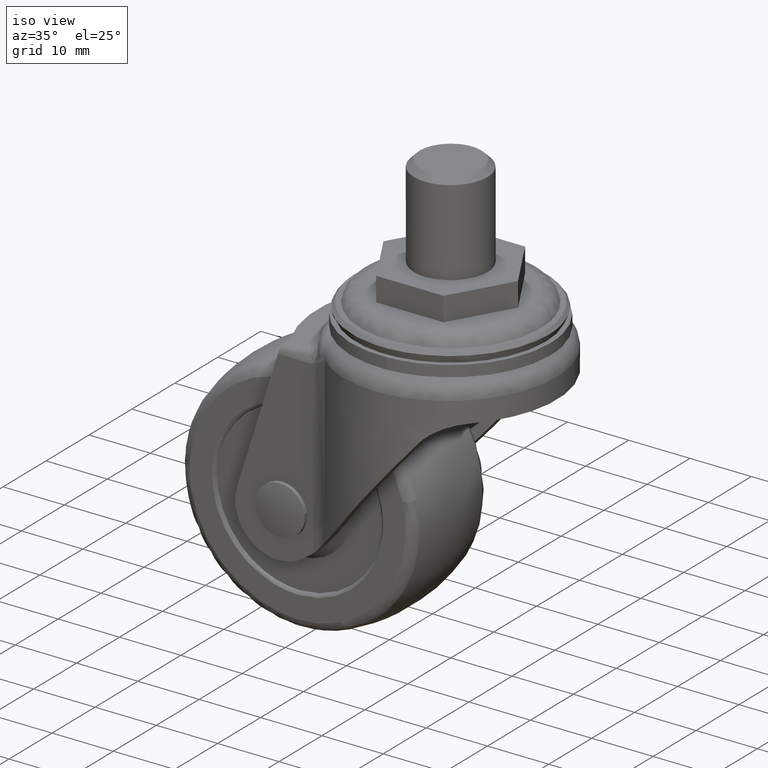
[diagram: clean part render]
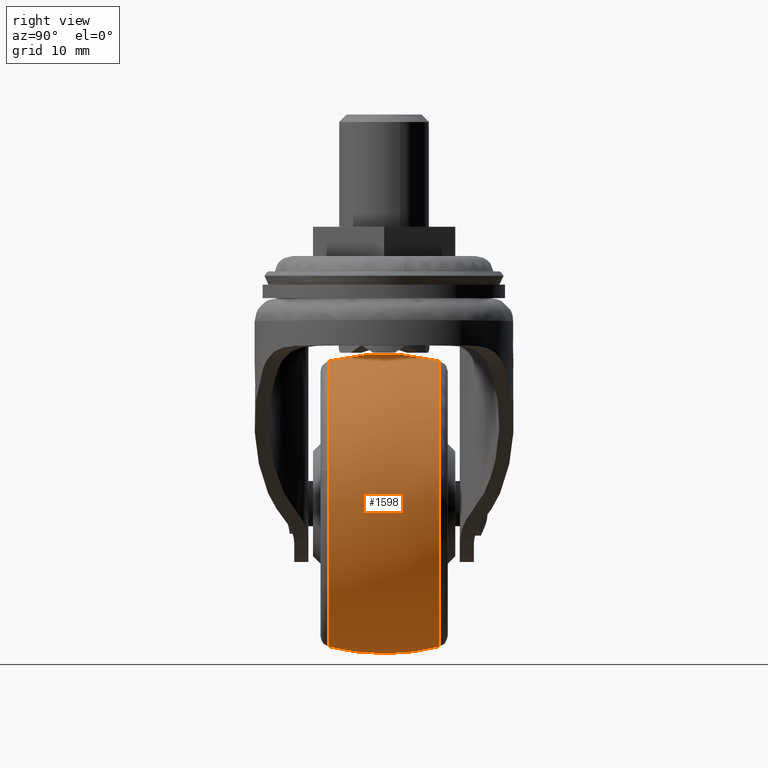
[diagram: tour spotlight — one face highlighted and labeled with its STEP entity id]
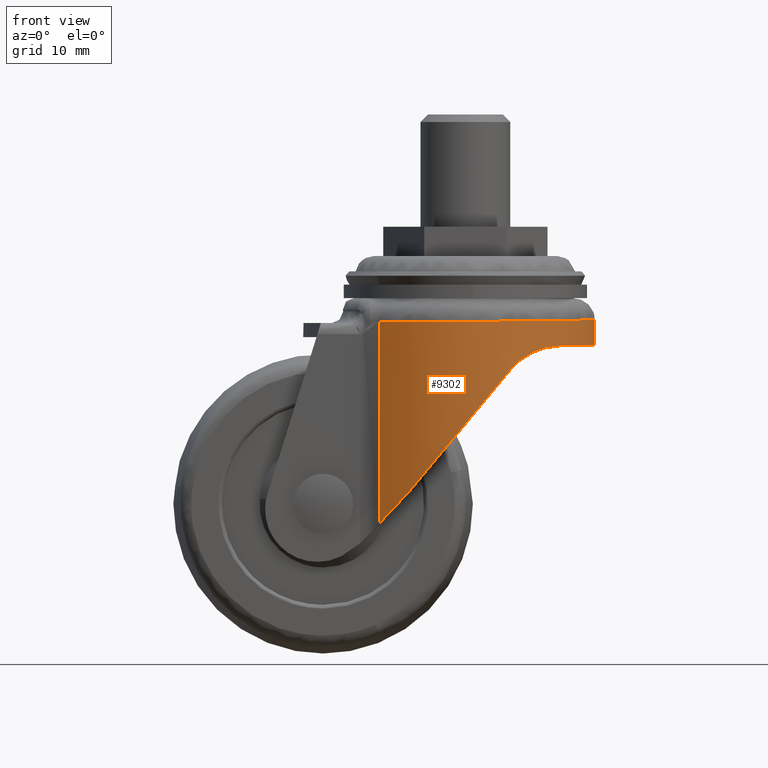
[diagram: tour spotlight — one face highlighted and labeled with its STEP entity id]
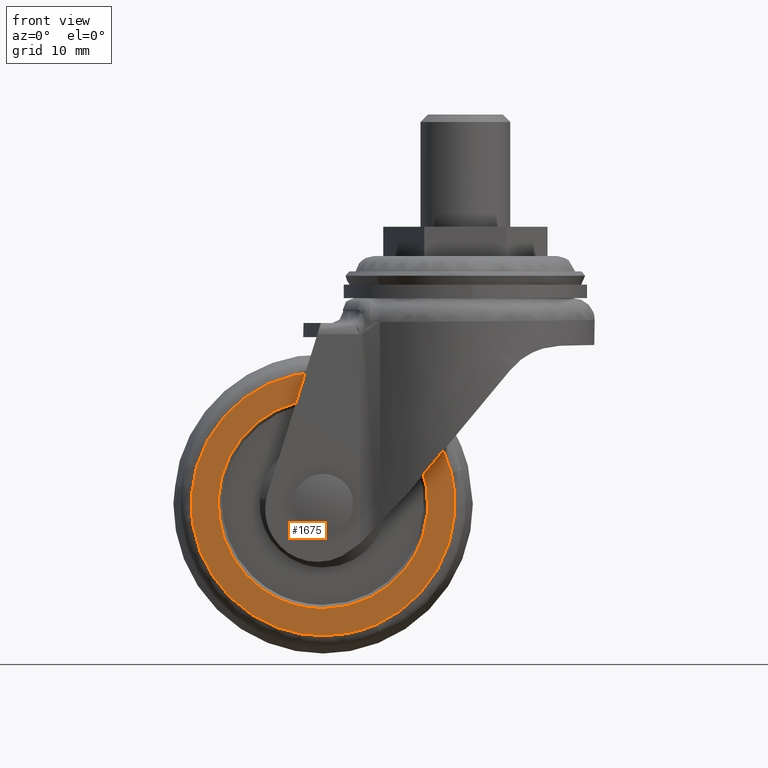
[diagram: tour spotlight — one face highlighted and labeled with its STEP entity id]
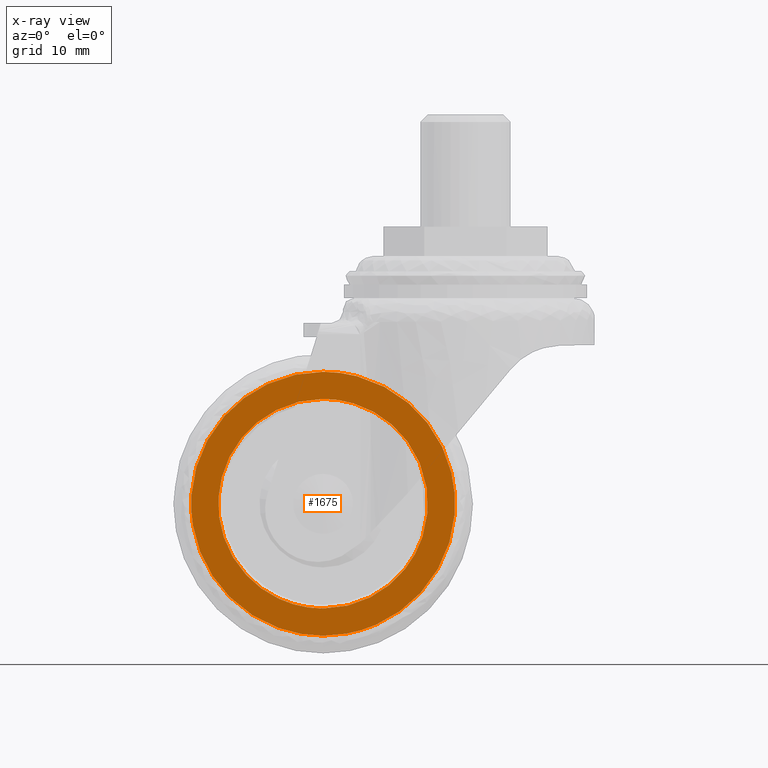
[diagram: x-ray of the same camera — body ghosted, this tour face saturated]
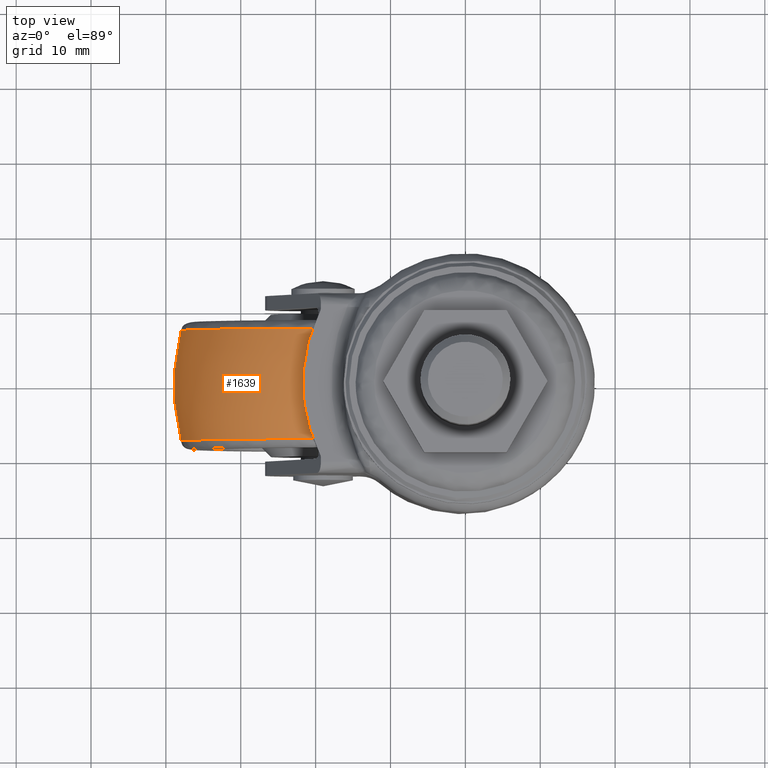
[diagram: tour spotlight — one face highlighted and labeled with its STEP entity id]
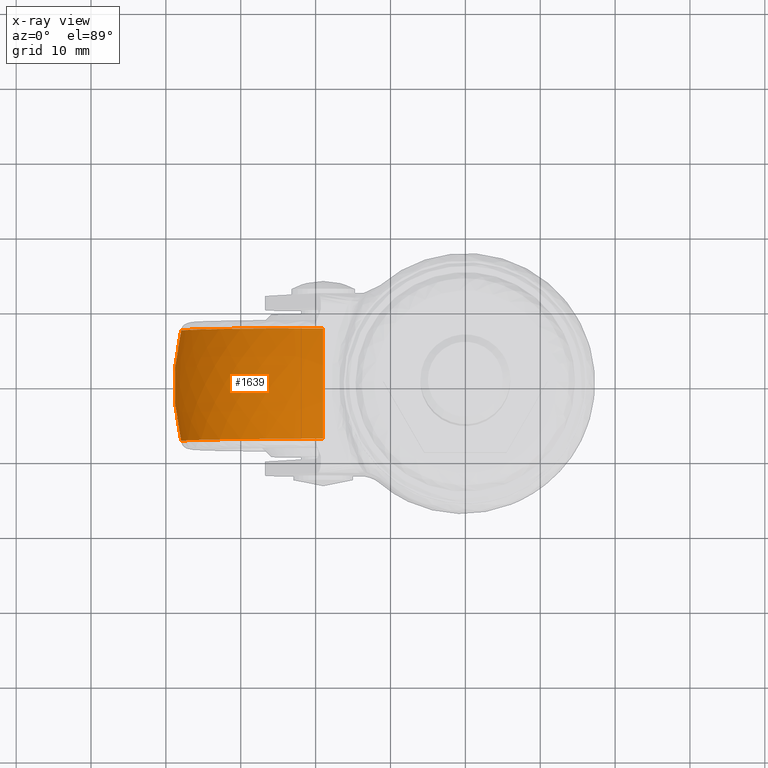
[diagram: x-ray of the same camera — body ghosted, this tour face saturated]
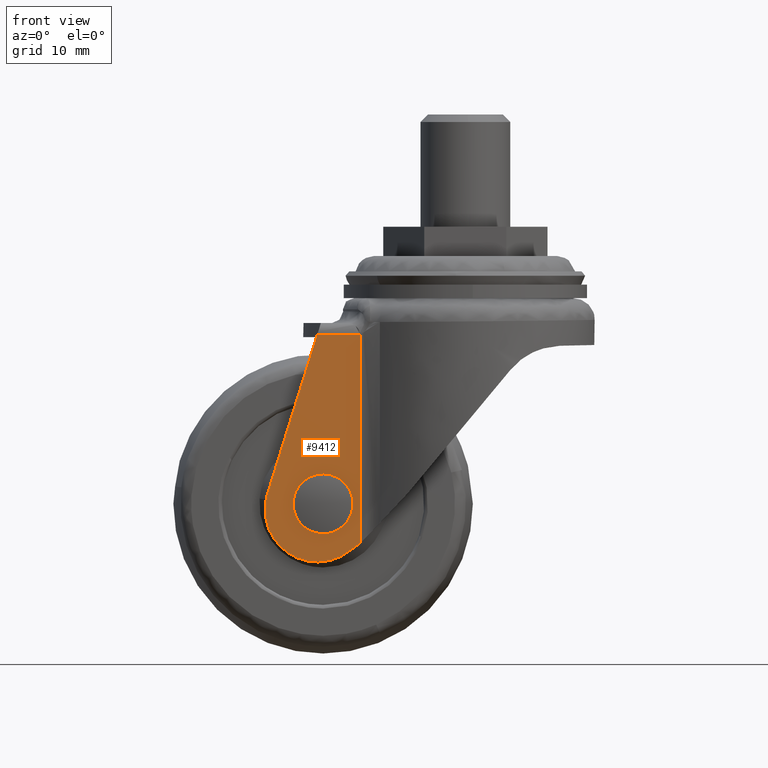
[diagram: tour spotlight — one face highlighted and labeled with its STEP entity id]
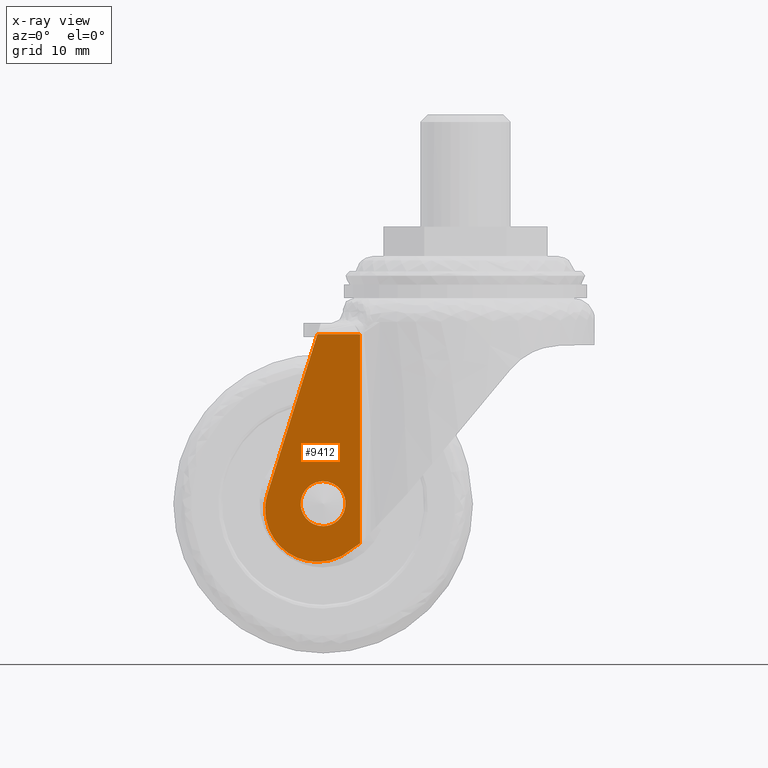
[diagram: x-ray of the same camera — body ghosted, this tour face saturated]
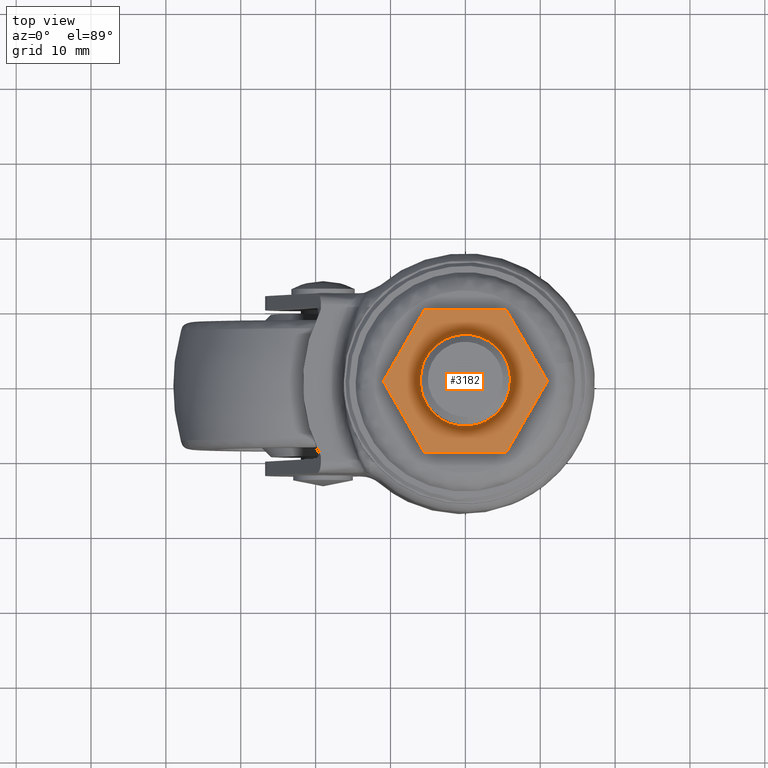
[diagram: tour spotlight — one face highlighted and labeled with its STEP entity id]
A machine part: a face-by-face anatomy tour. The part has 158 B-rep faces; the first image is the clean iso view, then the 6 largest visible faces are spotlighted one at a time (largest first), each with its STEP entity span.

Face 1 — right view, entity #1598. In plain terms, the highlighted face is a freeform B-spline surface patch.
Definition (entity closure, byte-faithful):
#876=CARTESIAN_POINT('',(-11.320739615115160,-7.368420571738975,-50.567538985142001));
#877=VERTEX_POINT('',#876);
#891=CARTESIAN_POINT('',(-0.460263569434891,-7.368413755446834,-28.587361010762582));
#892=VERTEX_POINT('',#891);
#893=CARTESIAN_POINT('',(-11.320739615115158,-7.368420571738975,-50.567538985141994));
#894=CARTESIAN_POINT('',(0.081031123244851,-7.368418954960338,-45.554972240992598));
#895=CARTESIAN_POINT('',(0.081031123244851,-7.368415011982393,-33.100004469450013));
#896=CARTESIAN_POINT('',(0.081031123244851,-7.368414287401393,-30.811218399188512));
#897=CARTESIAN_POINT('',(-0.460263569434891,-7.368413755446834,-28.587361010762578));
#905=(BOUNDED_CURVE()B_SPLINE_CURVE(2,(#893,#894,#895,#896,#897),.UNSPECIFIED.,.F.,.U.)B_SPLINE_CURVE_WITH_KNOTS((3,2,3),(0.068337989138416,0.250000000000000,0.290401662009067),.UNSPECIFIED.)CURVE()GEOMETRIC_REPRESENTATION_ITEM()RATIONAL_B_SPLINE_CURVE((0.883644850696517,0.787169715610506,1.0,0.952666508675005,0.920631831095782))REPRESENTATION_ITEM(''));
#906=EDGE_CURVE('',#877,#892,#905,.T.);
#1005=CARTESIAN_POINT('',(-19.0,-7.368408971333206,-14.018971815655270));
#1006=VERTEX_POINT('',#1005);
#1007=CARTESIAN_POINT('',(-0.460263569434891,-7.368413755446834,-28.587361010762582));
#1008=CARTESIAN_POINT('',(-4.006265901127791,-7.368408971333207,-14.018971815655272));
#1009=CARTESIAN_POINT('',(-19.0,-7.368408971333206,-14.018971815655270));
#1017=(BOUNDED_CURVE()B_SPLINE_CURVE(2,(#1007,#1008,#1009),.UNSPECIFIED.,.F.,.U.)B_SPLINE_CURVE_WITH_KNOTS((3,3),(0.290401662009067,0.500000000000000),.UNSPECIFIED.)CURVE()GEOMETRIC_REPRESENTATION_ITEM()RATIONAL_B_SPLINE_CURVE((0.920631831095782,0.754440272511543,1.0))REPRESENTATION_ITEM(''));
#1018=EDGE_CURVE('',#892,#1006,#1017,.T.);
#1020=CARTESIAN_POINT('',(-37.953412238017563,-7.368422365998788,-30.896849046391981));
#1021=VERTEX_POINT('',#1020);
#1035=CARTESIAN_POINT('',(-19.0,-7.368421052631580,-52.181037123244749));
#1036=VERTEX_POINT('',#1035);
#1037=CARTESIAN_POINT('',(-37.953412238017563,-7.368422365998788,-30.896849046391974));
#1038=CARTESIAN_POINT('',(-38.081030801210758,-7.368422332125693,-31.994731369161990));
#1039=CARTESIAN_POINT('',(-38.081030810784640,-7.368422294087092,-33.100006036320480));
#1040=CARTESIAN_POINT('',(-38.081030976064419,-7.368421637403487,-52.181037140353105));
#1041=CARTESIAN_POINT('',(-19.0,-7.368421052631580,-52.181037123244749));
#1049=(BOUNDED_CURVE()B_SPLINE_CURVE(2,(#1037,#1038,#1039,#1040,#1041),.UNSPECIFIED.,.F.,.U.)B_SPLINE_CURVE_WITH_KNOTS((3,2,3),(0.730000174581178,0.750000000000000,1.0),.UNSPECIFIED.)CURVE()GEOMETRIC_REPRESENTATION_ITEM()RATIONAL_B_SPLINE_CURVE((0.956886461809028,0.976568747029497,1.0,0.707106781186547,1.0))REPRESENTATION_ITEM(''));
#1050=EDGE_CURVE('',#1021,#1036,#1049,.T.);
#1052=CARTESIAN_POINT('',(-19.0,-7.368421052631580,-52.181037123244749));
#1053=CARTESIAN_POINT('',(-14.990862869810467,-7.368421052631581,-52.181037123244757));
#1054=CARTESIAN_POINT('',(-11.320739615115158,-7.368420571738975,-50.567538985141994));
#1062=(BOUNDED_CURVE()B_SPLINE_CURVE(2,(#1052,#1053,#1054),.UNSPECIFIED.,.F.,.U.)B_SPLINE_CURVE_WITH_KNOTS((3,3),(0.0,0.068337989138416),.UNSPECIFIED.)CURVE()GEOMETRIC_REPRESENTATION_ITEM()RATIONAL_B_SPLINE_CURVE((1.0,0.919937065576042,0.883644850696517))REPRESENTATION_ITEM(''));
#1063=EDGE_CURVE('',#1036,#877,#1062,.T.);
#1092=CARTESIAN_POINT('',(-0.579518657563386,7.368420234131580,-38.077114558328233));
#1093=VERTEX_POINT('',#1092);
#1094=CARTESIAN_POINT('',(-19.0,7.368414770911453,-14.018973285122460));
#1095=VERTEX_POINT('',#1094);
#1096=CARTESIAN_POINT('',(-0.579518657563386,7.368420234131580,-38.077114558328233));
#1097=CARTESIAN_POINT('',(0.081031114063391,7.368419755344560,-35.632393158122042));
#1098=CARTESIAN_POINT('',(0.081031114705274,7.368419238753664,-33.100005201876037));
#1099=CARTESIAN_POINT('',(0.081031119541739,7.368415346345582,-14.018973284121804));
#1100=CARTESIAN_POINT('',(-19.0,7.368414770911453,-14.018973285122460));
#1108=(BOUNDED_CURVE()B_SPLINE_CURVE(2,(#1096,#1097,#1098,#1099,#1100),.UNSPECIFIED.,.F.,.U.)B_SPLINE_CURVE_WITH_KNOTS((3,2,3),(0.205522345874817,0.250000000000000,0.500000000000000),.UNSPECIFIED.)CURVE()GEOMETRIC_REPRESENTATION_ITEM()RATIONAL_B_SPLINE_CURVE((0.914323795881473,0.947891186872015,1.0,0.707106781186547,1.0))REPRESENTATION_ITEM(''));
#1109=EDGE_CURVE('',#1093,#1095,#1108,.T.);
#1212=CARTESIAN_POINT('',(-19.0,7.368421052631590,-52.181037123244749));
#1213=VERTEX_POINT('',#1212);
#1214=CARTESIAN_POINT('',(-19.0,7.368421052631590,-52.181037123244749));
#1215=CARTESIAN_POINT('',(-4.390318042525402,7.368421804179556,-52.181037121937834));
#1216=CARTESIAN_POINT('',(-0.579518657563386,7.368420234131580,-38.077114558328233));
#1224=(BOUNDED_CURVE()B_SPLINE_CURVE(2,(#1214,#1215,#1216),.UNSPECIFIED.,.F.,.U.)B_SPLINE_CURVE_WITH_KNOTS((3,3),(0.0,0.205522345874817),.UNSPECIFIED.)CURVE()GEOMETRIC_REPRESENTATION_ITEM()RATIONAL_B_SPLINE_CURVE((1.0,0.759215594314532,0.914323795881473))REPRESENTATION_ITEM(''));
#1225=EDGE_CURVE('',#1213,#1093,#1224,.T.);
#1227=CARTESIAN_POINT('',(-37.953410738059773,7.368428312889586,-30.896849192521639));
#1228=VERTEX_POINT('',#1227);
#1229=CARTESIAN_POINT('',(-37.953410738059773,7.368428312889586,-30.896849192521632));
#1230=CARTESIAN_POINT('',(-38.081029343092240,7.368428125640043,-31.994731524588776));
#1231=CARTESIAN_POINT('',(-38.081029396015133,7.368427915363688,-33.100006200774203));
#1232=CARTESIAN_POINT('',(-38.081030309655155,7.368424285234689,-52.181037217816950));
#1233=CARTESIAN_POINT('',(-19.0,7.368421052631590,-52.181037123244749));
#1241=(BOUNDED_CURVE()B_SPLINE_CURVE(2,(#1229,#1230,#1231,#1232,#1233),.UNSPECIFIED.,.F.,.U.)B_SPLINE_CURVE_WITH_KNOTS((3,2,3),(0.730000174332622,0.750000000000000,1.0),.UNSPECIFIED.)CURVE()GEOMETRIC_REPRESENTATION_ITEM()RATIONAL_B_SPLINE_CURVE((0.956886461319808,0.976568746738295,1.0,0.707106781186547,1.0))REPRESENTATION_ITEM(''));
#1242=EDGE_CURVE('',#1228,#1213,#1241,.T.);
#1506=CARTESIAN_POINT('',(-37.756847485317714,-8.109497569732763,-30.919678709783888));
#1507=CARTESIAN_POINT('',(-38.866232832661666,-4.131656490681047,-30.790721903472317));
#1508=CARTESIAN_POINT('',(-38.866232832661680,4.243262E-015,-30.790721903472321));
#1509=CARTESIAN_POINT('',(-38.866232832661673,4.131658740165392,-30.790721903472317));
#1510=CARTESIAN_POINT('',(-37.756846299791825,8.109501820584168,-30.919678847591403));
#1511=CARTESIAN_POINT('',(-37.883144724328368,-8.109497569732763,-32.006184419532069));
#1512=CARTESIAN_POINT('',(-39.0,-4.131656490681046,-31.941489665526664));
#1513=CARTESIAN_POINT('',(-38.999999999999993,4.243262E-015,-31.941489665526660));
#1514=CARTESIAN_POINT('',(-38.999999999999993,4.131658740165390,-31.941489665526660));
#1515=CARTESIAN_POINT('',(-37.883143530819879,8.109501820584171,-32.006184488667024));
#1516=CARTESIAN_POINT('',(-37.883144724328375,-8.109497569732765,-33.100005999999901));
#1517=CARTESIAN_POINT('',(-39.0,-4.131656490681047,-33.100005999999894));
#1518=CARTESIAN_POINT('',(-38.999999999999993,4.243262E-015,-33.100005999999887));
#1519=CARTESIAN_POINT('',(-38.999999999999993,4.131658740165392,-33.100005999999887));
#1520=CARTESIAN_POINT('',(-37.883143530819872,8.109501820584169,-33.100005999999894));
#1521=CARTESIAN_POINT('',(-37.883144724328375,-8.109497569732763,-51.983150724328262));
#1522=CARTESIAN_POINT('',(-39.0,-4.131656490681047,-53.100005999999880));
#1523=CARTESIAN_POINT('',(-39.000000000000007,4.243262E-015,-53.100005999999887));
#1524=CARTESIAN_POINT('',(-38.999999999999993,4.131658740165390,-53.100005999999894));
#1525=CARTESIAN_POINT('',(-37.883143530819879,8.109501820584169,-51.983149530819759));
#1526=CARTESIAN_POINT('',(-19.000000000000004,-8.109497569732765,-51.983150724328269));
#1527=CARTESIAN_POINT('',(-18.999999999999993,-4.131656490681047,-53.100005999999901));
#1528=CARTESIAN_POINT('',(-19.0,4.243262E-015,-53.100005999999887));
#1529=CARTESIAN_POINT('',(-19.000000000000007,4.131658740165392,-53.100005999999894));
#1530=CARTESIAN_POINT('',(-19.0,8.109501820584169,-51.983149530819773));
#1531=CARTESIAN_POINT('',(-0.116855275671623,-8.109497569732763,-51.983150724328262));
#1532=CARTESIAN_POINT('',(0.999999999999997,-4.131656490681047,-53.100005999999880));
#1533=CARTESIAN_POINT('',(0.999999999999996,4.243262E-015,-53.100005999999887));
#1534=CARTESIAN_POINT('',(0.999999999999997,4.131658740165390,-53.100005999999894));
#1535=CARTESIAN_POINT('',(-0.116856469180126,8.109501820584169,-51.983149530819759));
#1536=CARTESIAN_POINT('',(-0.116855275671622,-8.109497569732765,-33.100005999999901));
#1537=CARTESIAN_POINT('',(0.999999999999997,-4.131656490681047,-33.100005999999894));
#1538=CARTESIAN_POINT('',(0.999999999999997,4.243262E-015,-33.100005999999887));
#1539=CARTESIAN_POINT('',(0.999999999999997,4.131658740165392,-33.100005999999887));
#1540=CARTESIAN_POINT('',(-0.116856469180125,8.109501820584169,-33.100005999999894));
#1541=CARTESIAN_POINT('',(-0.116855275671622,-8.109497569732763,-14.216861275671517));
#1542=CARTESIAN_POINT('',(0.999999999999997,-4.131656490681047,-13.100005999999897));
#1543=CARTESIAN_POINT('',(0.999999999999996,4.243262E-015,-13.100005999999899));
#1544=CARTESIAN_POINT('',(0.999999999999997,4.131658740165390,-13.100005999999897));
#1545=CARTESIAN_POINT('',(-0.116856469180126,8.109501820584169,-14.216862469180022));
#1546=CARTESIAN_POINT('',(-19.000000000000004,-8.109497569732765,-14.216861275671526));
#1547=CARTESIAN_POINT('',(-18.999999999999993,-4.131656490681047,-13.100005999999901));
#1548=CARTESIAN_POINT('',(-19.0,4.243262E-015,-13.100005999999899));
#1549=CARTESIAN_POINT('',(-19.000000000000007,4.131658740165392,-13.100005999999903));
#1550=CARTESIAN_POINT('',(-19.0,8.109501820584169,-14.216862469180025));
#1558=(BOUNDED_SURFACE()B_SPLINE_SURFACE(2,2,((#1506,#1511,#1516,#1521,#1526,#1531,#1536,#1541,#1546),(#1507,#1512,#1517,#1522,#1527,#1532,#1537,#1542,#1547),(#1508,#1513,#1518,#1523,#1528,#1533,#1538,#1543,#1548),(#1509,#1514,#1519,#1524,#1529,#1534,#1539,#1544,#1549),(#1510,#1515,#1520,#1525,#1530,#1535,#1540,#1545,#1550)),.UNSPECIFIED.,.F.,.F.,.U.)B_SPLINE_SURFACE_WITH_KNOTS((3,2,3),(3,2,2,2,3),(0.0,8.464475988803734,16.928956392831211),(0.0,2.650966246153038,35.788051236000641,68.925136225848235,102.062221215695800),.UNSPECIFIED.)GEOMETRIC_REPRESENTATION_ITEM()RATIONAL_B_SPLINE_SURFACE(((0.894969583617267,0.913378428330628,0.935293718785222,0.661352530954214,0.935293718785222,0.661352530954214,0.935293718785222,0.661352530954214,0.935293718785222),(0.916756799111159,0.935613790302462,0.958062588447692,0.677452553092500,0.958062588447692,0.677452553092500,0.958062588447692,0.677452553092500,0.958062588447692),(0.956886126402807,0.976568547383107,1.0,0.707106781186548,1.0,0.707106781186548,1.0,0.707106781186548,1.0),(0.916756778178976,0.935613768939720,0.958062566572380,0.677452537624318,0.958062566572380,0.677452537624318,0.958062566572380,0.677452537624318,0.958062566572380),(0.894969560888061,0.913378405133899,0.935293695031918,0.661352514158092,0.935293695031918,0.661352514158092,0.935293695031918,0.661352514158092,0.935293695031918)))REPRESENTATION_ITEM('')SURFACE());
#1559=ORIENTED_EDGE('',*,*,#1050,.F.);
#1560=CARTESIAN_POINT('',(-37.953412238017563,-7.368422365998788,-30.896849046391974));
#1561=CARTESIAN_POINT('',(-38.866235048733330,-3.741516829046741,-30.790740967983535));
#1562=CARTESIAN_POINT('',(-38.866235047911154,-1.014479E-013,-30.790740960912341));
#1563=CARTESIAN_POINT('',(-38.866235047088992,3.741519944165558,-30.790740953841151));
#1564=CARTESIAN_POINT('',(-37.953410738059773,7.368428312889585,-30.896849192521636));
#1572=(BOUNDED_CURVE()B_SPLINE_CURVE(2,(#1560,#1561,#1562,#1563,#1564),.UNSPECIFIED.,.F.,.U.)B_SPLINE_CURVE_WITH_KNOTS((3,2,3),(0.396109893548683,0.500000000000000,0.603890189650340),.UNSPECIFIED.)CURVE()GEOMETRIC_REPRESENTATION_ITEM()RATIONAL_B_SPLINE_CURVE((0.899078605552524,0.920401601154082,0.956886118190660,0.920401571935937,0.899078571400053))REPRESENTATION_ITEM(''));
#1573=EDGE_CURVE('',#1021,#1228,#1572,.T.);
#1574=ORIENTED_EDGE('',*,*,#1573,.T.);
#1575=ORIENTED_EDGE('',*,*,#1242,.T.);
#1576=ORIENTED_EDGE('',*,*,#1225,.T.);
#1577=ORIENTED_EDGE('',*,*,#1109,.T.);
#1578=CARTESIAN_POINT('',(-18.999999999999996,-7.368408971333206,-14.018971815655265));
#1579=CARTESIAN_POINT('',(-19.0,-3.741509812612260,-13.100005999999901));
#1580=CARTESIAN_POINT('',(-19.0,4.243262E-015,-13.100005999999899));
#1581=CARTESIAN_POINT('',(-18.999999999999996,3.741512850564681,-13.100005999999905));
#1582=CARTESIAN_POINT('',(-18.999999999999996,7.368414770911453,-14.018973285122460));
#1590=(BOUNDED_CURVE()B_SPLINE_CURVE(2,(#1578,#1579,#1580,#1581,#1582),.UNSPECIFIED.,.F.,.U.)B_SPLINE_CURVE_WITH_KNOTS((3,2,3),(0.396110080944656,0.500000000000000,0.603890000193403),.UNSPECIFIED.)CURVE()GEOMETRIC_REPRESENTATION_ITEM()RATIONAL_B_SPLINE_CURVE((0.939587967037327,0.961871689292405,1.0,0.961871659514183,0.939587932230148))REPRESENTATION_ITEM(''));
#1591=EDGE_CURVE('',#1006,#1095,#1590,.T.);
#1592=ORIENTED_EDGE('',*,*,#1591,.F.);
#1593=ORIENTED_EDGE('',*,*,#1018,.F.);
#1594=ORIENTED_EDGE('',*,*,#906,.F.);
#1595=ORIENTED_EDGE('',*,*,#1063,.F.);
#1596=EDGE_LOOP('',(#1559,#1574,#1575,#1576,#1577,#1592,#1593,#1594,#1595));
#1597=FACE_OUTER_BOUND('',#1596,.T.);
#1598=ADVANCED_FACE('',(#1597),#1558,.T.);

Face 2 — front view, entity #9302. In plain terms, the highlighted face is a freeform B-spline surface patch.
Definition (entity closure, byte-faithful):
#7957=CARTESIAN_POINT('',(-11.419695581654500,12.995405065727700,-11.713080000000000));
#7958=VERTEX_POINT('',#7957);
#7973=CARTESIAN_POINT('',(-11.419695581654500,-12.995405065727700,-11.713080000000000));
#7974=VERTEX_POINT('',#7973);
#7988=CARTESIAN_POINT('',(-11.419695581654500,12.995405065727700,-11.713080000000000));
#7989=CARTESIAN_POINT('',(-11.271416291026330,13.123144481645520,-11.713026682557469));
#7990=CARTESIAN_POINT('',(-10.968549386510491,13.384057798129550,-11.712917779360509));
#7991=CARTESIAN_POINT('',(-10.487653469866640,13.762995971597780,-11.712080376399030));
#7992=CARTESIAN_POINT('',(-9.974227256159054,14.140299697191660,-11.710756965047830));
#7993=CARTESIAN_POINT('',(-9.426032251463216,14.511750821248921,-11.708892886181379));
#7994=CARTESIAN_POINT('',(-8.842632767614727,14.874852085154661,-11.706503577262120));
#7995=CARTESIAN_POINT('',(-8.223271911034891,15.226384319262859,-11.703584575836439));
#7996=CARTESIAN_POINT('',(-7.567506507665017,15.563103158462150,-11.700137071680549));
#7997=CARTESIAN_POINT('',(-6.875060479795973,15.881547634469740,-11.696160665102600));
#7998=CARTESIAN_POINT('',(-6.145900862871977,16.178103554365570,-11.691655413188100));
#7999=CARTESIAN_POINT('',(-5.380251962248427,16.448998470105639,-11.686621251050020));
#8000=CARTESIAN_POINT('',(-4.578627755255596,16.690319903691801,-11.681058153881290));
#8001=CARTESIAN_POINT('',(-3.741859613532087,16.898031318850439,-11.674966090601981));
#8002=CARTESIAN_POINT('',(-2.871125410862745,17.067993354473401,-11.668345035941201));
#8003=CARTESIAN_POINT('',(-1.967977850685972,17.195988511671569,-11.661194967455890));
#8004=CARTESIAN_POINT('',(-1.034372133564578,17.277750114244789,-11.653515862046280));
#8005=CARTESIAN_POINT('',(-0.072692231519268,17.308995449677269,-11.645307711426900));
#8006=CARTESIAN_POINT('',(0.914224225111722,17.285463744142849,-11.636570459589530));
#8007=CARTESIAN_POINT('',(1.923064913382879,17.202957272097841,-11.627304244357450));
#8008=CARTESIAN_POINT('',(2.950018955696415,17.057392575328471,-11.617508460450750));
#8009=CARTESIAN_POINT('',(3.990779157198160,16.844834945629479,-11.607185385029540));
#8010=CARTESIAN_POINT('',(5.040461734266876,16.561619836331261,-11.596326156292159));
#8011=CARTESIAN_POINT('',(6.093866832439824,16.204159936435889,-11.584964951346310));
#8012=CARTESIAN_POINT('',(8.328605836710660,15.280610794164151,-11.559449550653991));
#8013=CARTESIAN_POINT('',(11.358611387164260,13.339637116272151,-11.523209087228160));
#8014=CARTESIAN_POINT('',(14.362830399876980,9.950718047701768,-11.483751306685519));
#8015=CARTESIAN_POINT('',(16.210218165723379,6.413188142013921,-11.455243061346881));
#8016=CARTESIAN_POINT('',(17.122004168427559,3.082732283450690,-11.437806334563239));
#8017=CARTESIAN_POINT('',(17.404315486736799,-0.268348960544449,-11.430333332638270));
#8018=CARTESIAN_POINT('',(17.003796947099740,-3.990356696554462,-11.440807381581710));
#8019=CARTESIAN_POINT('',(15.449526014656360,-8.300459584430703,-11.468167686209981));
#8020=CARTESIAN_POINT('',(12.242790587548930,-12.681867733994880,-11.512500468951760));
#8021=CARTESIAN_POINT('',(8.445633107219063,-15.298501071675890,-11.558413649855479));
#8022=CARTESIAN_POINT('',(5.308204921001408,-16.504028657693141,-11.593715367000669));
#8023=CARTESIAN_POINT('',(3.450791532668696,-16.987071921363320,-11.612726951654770));
#8024=CARTESIAN_POINT('',(1.630149254679013,-17.254344933536739,-11.630157371307710));
#8025=CARTESIAN_POINT('',(-0.130071277775516,-17.328058168318901,-11.645914220860339));
#8026=CARTESIAN_POINT('',(-1.810533196856389,-17.231144657636641,-11.660021009206019));
#8027=CARTESIAN_POINT('',(-3.396708107525255,-16.987321006930848,-11.672472311337630));
#8028=CARTESIAN_POINT('',(-4.878255118081352,-16.620148863186941,-11.683269554023180));
#8029=CARTESIAN_POINT('',(-6.248664918517503,-16.152593855226790,-11.692414187890151));
#8030=CARTESIAN_POINT('',(-7.504567373042986,-15.606366454775269,-11.699902135132350));
#8031=CARTESIAN_POINT('',(-8.645882385630046,-15.002346980105610,-11.705750204212711));
#8032=CARTESIAN_POINT('',(-9.673122014103157,-14.357863137674190,-11.709904253929110));
#8033=CARTESIAN_POINT('',(-10.594423516498789,-13.695094865460691,-11.712551682318219));
#8034=CARTESIAN_POINT('',(-11.151230633734610,-13.223017502373001,-11.712908135732579));
#8035=CARTESIAN_POINT('',(-11.419695581654500,-12.995405065727700,-11.713080000000000));
#8036=B_SPLINE_CURVE_WITH_KNOTS('',3,(#7988,#7989,#7990,#7991,#7992,#7993,#7994,#7995,#7996,#7997,#7998,#7999,#8000,#8001,#8002,#8003,#8004,#8005,#8006,#8007,#8008,#8009,#8010,#8011,#8012,#8013,#8014,#8015,#8016,#8017,#8018,#8019,#8020,#8021,#8022,#8023,#8024,#8025,#8026,#8027,#8028,#8029,#8030,#8031,#8032,#8033,#8034,#8035),.UNSPECIFIED.,.F.,.U.,(4,1,1,1,1,1,1,1,1,1,1,1,1,1,1,1,1,1,1,1,1,1,1,1,1,1,1,1,1,1,1,1,1,1,1,1,1,1,1,1,1,1,1,1,1,4),(0.0,0.007416033204893,0.015147570581419,0.023194613203206,0.031557161401801,0.040235214850686,0.049228772634552,0.058537833306838,0.068162394937843,0.078102455155193,0.088358011178095,0.098929059846472,0.109815597645882,0.121017620728921,0.132535124933703,0.144368105799871,0.156516558582530,0.168980478264421,0.181759859566587,0.194854696957760,0.208264984662637,0.221990716669214,0.236031886735289,0.250388488394257,0.313606389182101,0.370208747462004,0.420182477056079,0.463516095594720,0.500199768776444,0.547061534465970,0.604283390649372,0.671833198936682,0.749672751202255,0.774848764847878,0.799038478632082,0.822241774143728,0.844458538687926,0.865688665413246,0.885932053469771,0.905188608207504,0.923458241428219,0.940740871709081,0.957036424824146,0.972344834301631,0.986666042173119,1.0),.UNSPECIFIED.);
#8037=EDGE_CURVE('',#7958,#7974,#8036,.T.);
#9046=CARTESIAN_POINT('',(-11.419695581654500,-12.995405065727700,-38.545226143011547));
#9047=VERTEX_POINT('',#9046);
#9061=CARTESIAN_POINT('',(-11.419695581654500,-12.995405065727700,-11.713080000000000));
#9062=CARTESIAN_POINT('',(-11.419695581654500,-12.995405065727700,-38.545226143011547));
#9063=QUASI_UNIFORM_CURVE('',1,(#9061,#9062),.UNSPECIFIED.,.F.,.U.);
#9064=EDGE_CURVE('',#7974,#9047,#9063,.T.);
#9093=CARTESIAN_POINT('',(-11.419695581654500,12.995405065727700,-38.545226143011547));
#9094=VERTEX_POINT('',#9093);
#9095=CARTESIAN_POINT('',(-11.419695581654500,12.995405065727700,-38.545226143011547));
#9096=CARTESIAN_POINT('',(-11.419695581654500,12.995405065727700,-11.713080000000000));
#9097=QUASI_UNIFORM_CURVE('',1,(#9095,#9096),.UNSPECIFIED.,.F.,.U.);
#9098=EDGE_CURVE('',#9094,#7958,#9097,.T.);
#9148=CARTESIAN_POINT('',(-11.780549510465541,12.669200970521770,-39.223029796534597));
#9149=CARTESIAN_POINT('',(-11.780549510465541,12.669200970521770,-10.738331257228550));
#9150=CARTESIAN_POINT('',(0.669439609128849,24.245914732455148,-39.223029796534597));
#9151=CARTESIAN_POINT('',(0.669439609128849,24.245914732455148,-10.738331257228552));
#9152=CARTESIAN_POINT('',(12.461672451738121,11.999863320287901,-39.223029796534597));
#9153=CARTESIAN_POINT('',(12.461672451738121,11.999863320287901,-10.738331257228550));
#9154=CARTESIAN_POINT('',(24.253905294347394,-0.246188091879349,-39.223029796534597));
#9155=CARTESIAN_POINT('',(24.253905294347394,-0.246188091879349,-10.738331257228552));
#9156=CARTESIAN_POINT('',(12.215521855497609,-12.250347986806741,-39.223029796534597));
#9157=CARTESIAN_POINT('',(12.215521855497609,-12.250347986806741,-10.738331257228550));
#9158=CARTESIAN_POINT('',(0.177138416647816,-24.254507881734138,-39.223029796534597));
#9159=CARTESIAN_POINT('',(0.177138416647816,-24.254507881734138,-10.738331257228552));
#9160=CARTESIAN_POINT('',(-12.035291947206799,-12.427459424415719,-39.223029796534597));
#9161=CARTESIAN_POINT('',(-12.035291947206799,-12.427459424415719,-10.738331257228550));
#9169=(BOUNDED_SURFACE()B_SPLINE_SURFACE(1,2,((#9148,#9150,#9152,#9154,#9156,#9158,#9160),(#9149,#9151,#9153,#9155,#9157,#9159,#9161)),.UNSPECIFIED.,.F.,.F.,.U.)B_SPLINE_SURFACE_WITH_KNOTS((2,2),(3,2,2,3),(0.0,28.484698539306049),(0.0,28.310467458797500,56.620934917595001,84.931402376392498),.UNSPECIFIED.)GEOMETRIC_REPRESENTATION_ITEM()RATIONAL_B_SPLINE_SURFACE(((1.0,0.713250449154182,1.0,0.713250449154182,1.0,0.713250449154182,1.0),(1.0,0.713250449154182,1.0,0.713250449154182,1.0,0.713250449154182,1.0)))REPRESENTATION_ITEM('')SURFACE());
#9170=ORIENTED_EDGE('',*,*,#9098,.T.);
#9171=ORIENTED_EDGE('',*,*,#8037,.T.);
#9172=ORIENTED_EDGE('',*,*,#9064,.T.);
#9173=CARTESIAN_POINT('',(-7.697175877460260,-15.493336745563751,-34.593574192256312));
#9174=VERTEX_POINT('',#9173);
#9175=CARTESIAN_POINT('',(-11.419695581654500,-12.995405065727679,-38.545226143011547));
#9176=CARTESIAN_POINT('',(-9.721633528174245,-14.487574923567962,-36.742643279963609));
#9177=CARTESIAN_POINT('',(-7.697175877460260,-15.493336745563751,-34.593574192256312));
#9185=(BOUNDED_CURVE()B_SPLINE_CURVE(2,(#9175,#9176,#9177),.UNSPECIFIED.,.F.,.U.)CURVE()GEOMETRIC_REPRESENTATION_ITEM()QUASI_UNIFORM_CURVE()RATIONAL_B_SPLINE_CURVE((1.0,0.991570937569763,1.0))REPRESENTATION_ITEM(''));
#9186=EDGE_CURVE('',#9047,#9174,#9185,.T.);
#9187=ORIENTED_EDGE('',*,*,#9186,.T.);
#9188=CARTESIAN_POINT('',(6.087201972660830,-16.193701619581251,-18.038480959911400));
#9189=VERTEX_POINT('',#9188);
#9190=CARTESIAN_POINT('',(-7.697175877460260,-15.493336745563751,-34.593574192256312));
#9191=CARTESIAN_POINT('',(-0.957322016743397,-18.841733634257142,-26.498982600981218));
#9192=CARTESIAN_POINT('',(6.087201972660830,-16.193701619581251,-18.038480959911400));
#9200=(BOUNDED_CURVE()B_SPLINE_CURVE(2,(#9190,#9191,#9192),.UNSPECIFIED.,.F.,.U.)CURVE()GEOMETRIC_REPRESENTATION_ITEM()QUASI_UNIFORM_CURVE()RATIONAL_B_SPLINE_CURVE((1.0,0.916991683792285,1.0))REPRESENTATION_ITEM(''));
#9201=EDGE_CURVE('',#9174,#9189,#9200,.T.);
#9202=ORIENTED_EDGE('',*,*,#9201,.T.);
#9203=CARTESIAN_POINT('',(12.614407805257439,-11.839202495213099,-14.892319114851119));
#9204=VERTEX_POINT('',#9203);
#9205=CARTESIAN_POINT('',(12.614407805257439,-11.839202495213099,-14.892319114851119));
#9206=CARTESIAN_POINT('',(12.110964126276500,-12.375610574744851,-14.903311615177550));
#9207=CARTESIAN_POINT('',(11.580648711455190,-12.872234561015270,-14.957997723434520));
#9208=CARTESIAN_POINT('',(10.750535843561540,-13.558943206211890,-15.130436543452920));
#9209=CARTESIAN_POINT('',(10.468051521234241,-13.778119404857589,-15.203055019164220));
#9210=CARTESIAN_POINT('',(10.036397288094641,-14.092281530041840,-15.338939291617560));
#9211=CARTESIAN_POINT('',(9.890890042529552,-14.194754334606969,-15.388875713833411));
#9212=CARTESIAN_POINT('',(9.601094170864458,-14.392350300609220,-15.497135558426860));
#9213=CARTESIAN_POINT('',(9.456410172867377,-14.487775098289911,-15.555566058533600));
#9214=CARTESIAN_POINT('',(9.023479979965790,-14.764284326566980,-15.744278674108360));
#9215=CARTESIAN_POINT('',(8.736343163705231,-14.935610118446739,-15.887950373422530));
#9216=CARTESIAN_POINT('',(8.309945798614383,-15.174364441226460,-16.132796733830119));
#9217=CARTESIAN_POINT('',(8.168533984785947,-15.250908449317810,-16.219309104794551));
#9218=CARTESIAN_POINT('',(7.957791330195035,-15.361310039921451,-16.356822427338422));
#9219=CARTESIAN_POINT('',(7.887773243768067,-15.397374742620780,-16.403951655781420));
#9220=CARTESIAN_POINT('',(7.748249001650429,-15.468055893299031,-16.500868500074780));
#9221=CARTESIAN_POINT('',(7.678624439371491,-15.502729569034701,-16.550745668703680));
#9222=CARTESIAN_POINT('',(7.333793219880549,-15.671625153525330,-16.805579686531409));
#9223=CARTESIAN_POINT('',(7.068145290766594,-15.792650466778969,-17.026944515925429));
#9224=CARTESIAN_POINT('',(6.559732003194216,-16.010509131926739,-17.505434695456319));
#9225=CARTESIAN_POINT('',(6.316953693946991,-16.107338096040650,-17.762548218692270));
#9226=CARTESIAN_POINT('',(6.087201972660830,-16.193701619581251,-18.038480959911400));
#9227=B_SPLINE_CURVE_WITH_KNOTS('',3,(#9205,#9206,#9207,#9208,#9209,#9210,#9211,#9212,#9213,#9214,#9215,#9216,#9217,#9218,#9219,#9220,#9221,#9222,#9223,#9224,#9225,#9226),.UNSPECIFIED.,.F.,.U.,(4,2,2,2,2,2,2,2,2,2,4),(0.0,0.249999999999999,0.374999999999998,0.437499999999998,0.499999999999998,0.624999999999998,0.687499999999998,0.718749999999998,0.749999999999998,0.874999999999999,1.0),.UNSPECIFIED.);
#9228=EDGE_CURVE('',#9204,#9189,#9227,.T.);
#9229=ORIENTED_EDGE('',*,*,#9228,.F.);
#9230=CARTESIAN_POINT('',(12.614407805257439,11.839202495212980,-14.892319114851119));
#9231=VERTEX_POINT('',#9230);
#9232=CARTESIAN_POINT('',(12.614407805257439,11.839202495212980,-14.892319114851119));
#9233=CARTESIAN_POINT('',(23.726044426378859,-1.075529E-013,-14.649700775830363));
#9234=CARTESIAN_POINT('',(12.614407805257439,-11.839202495213099,-14.892319114851119));
#9242=(BOUNDED_CURVE()B_SPLINE_CURVE(2,(#9232,#9233,#9234),.UNSPECIFIED.,.F.,.U.)CURVE()GEOMETRIC_REPRESENTATION_ITEM()QUASI_UNIFORM_CURVE()RATIONAL_B_SPLINE_CURVE((1.0,0.729156520535115,1.0))REPRESENTATION_ITEM(''));
#9243=EDGE_CURVE('',#9231,#9204,#9242,.T.);
#9244=ORIENTED_EDGE('',*,*,#9243,.F.);
#9245=CARTESIAN_POINT('',(6.087201972660830,16.193701619581450,-18.038480959911400));
#9246=VERTEX_POINT('',#9245);
#9247=CARTESIAN_POINT('',(6.087201972660830,16.193701619581450,-18.038480959911400));
#9248=CARTESIAN_POINT('',(6.316877814541988,16.107366619059960,-17.762639350162829));
#9249=CARTESIAN_POINT('',(6.559040133264306,16.010768133998990,-17.506235037123520));
#9250=CARTESIAN_POINT('',(7.064871722905115,15.794090390058710,-17.029877387593508));
#9251=CARTESIAN_POINT('',(7.328555048981425,15.674014054797549,-16.809938516372590));
#9252=CARTESIAN_POINT('',(7.738219053408399,15.473625134578290,-16.506471267812440));
#9253=CARTESIAN_POINT('',(7.877135014456226,15.403444797079850,-16.409730342593559));
#9254=CARTESIAN_POINT('',(8.088833046137612,15.292714666300331,-16.271190222338859));
#9255=CARTESIAN_POINT('',(8.160011684327376,15.254860275125480,-16.226075200330062));
#9256=CARTESIAN_POINT('',(8.302409871250298,15.177830643136261,-16.138645615069478));
#9257=CARTESIAN_POINT('',(8.373750519584666,15.138593263963250,-16.096249030412402));
#9258=CARTESIAN_POINT('',(8.731040652506826,14.938747924093301,-15.890654640032331));
#9259=CARTESIAN_POINT('',(9.018732156947038,14.767170951491170,-15.746572569471450));
#9260=CARTESIAN_POINT('',(9.595081289442664,14.399350078330020,-15.494899517895750));
#9261=CARTESIAN_POINT('',(9.883747012251803,14.203107534000081,-15.387324464664241));
#9262=CARTESIAN_POINT('',(10.315665014623050,13.889158900459870,-15.250867900265760));
#9263=CARTESIAN_POINT('',(10.459588137305200,13.781121998157150,-15.209529518973520));
#9264=CARTESIAN_POINT('',(10.743664576517590,13.560825159164450,-15.135531707198060));
#9265=CARTESIAN_POINT('',(10.884217142386870,13.448284326479410,-15.102735899149270));
#9266=CARTESIAN_POINT('',(11.579294142988410,12.873635586170540,-14.958008452311139));
#9267=CARTESIAN_POINT('',(12.110780987555501,12.375805704992230,-14.903315613941540));
#9268=CARTESIAN_POINT('',(12.614407805257439,11.839202495212980,-14.892319114851119));
#9269=B_SPLINE_CURVE_WITH_KNOTS('',3,(#9247,#9248,#9249,#9250,#9251,#9252,#9253,#9254,#9255,#9256,#9257,#9258,#9259,#9260,#9261,#9262,#9263,#9264,#9265,#9266,#9267,#9268),.UNSPECIFIED.,.F.,.U.,(4,2,2,2,2,2,2,2,2,2,4),(0.0,0.125000000000000,0.250000000000000,0.312499999999999,0.343749999999999,0.374999999999999,0.499999999999999,0.624999999999999,0.687499999999999,0.749999999999999,1.0),.UNSPECIFIED.);
#9270=EDGE_CURVE('',#9246,#9231,#9269,.T.);
#9271=ORIENTED_EDGE('',*,*,#9270,.F.);
#9272=CARTESIAN_POINT('',(-7.697175877460260,15.493336745564200,-34.593574192256312));
#9273=VERTEX_POINT('',#9272);
#9274=CARTESIAN_POINT('',(6.087201972660796,16.193701619581439,-18.038480959911372));
#9275=CARTESIAN_POINT('',(-0.957322016742826,18.841733634256933,-26.498982600980533));
#9276=CARTESIAN_POINT('',(-7.697175877460260,15.493336745564200,-34.593574192256312));
#9284=(BOUNDED_CURVE()B_SPLINE_CURVE(2,(#9274,#9275,#9276),.UNSPECIFIED.,.F.,.U.)CURVE()GEOMETRIC_REPRESENTATION_ITEM()QUASI_UNIFORM_CURVE()RATIONAL_B_SPLINE_CURVE((1.0,0.916991683792307,1.0))REPRESENTATION_ITEM(''));
#9285=EDGE_CURVE('',#9246,#9273,#9284,.T.);
#9286=ORIENTED_EDGE('',*,*,#9285,.T.);
#9287=CARTESIAN_POINT('',(-7.697175877460260,15.493336745564200,-34.593574192256312));
#9288=CARTESIAN_POINT('',(-9.721633528173845,14.487574923568300,-36.742643279963190));
#9289=CARTESIAN_POINT('',(-11.419695581654480,12.995405065727700,-38.545226143011533));
#9297=(BOUNDED_CURVE()B_SPLINE_CURVE(2,(#9287,#9288,#9289),.UNSPECIFIED.,.F.,.U.)CURVE()GEOMETRIC_REPRESENTATION_ITEM()QUASI_UNIFORM_CURVE()RATIONAL_B_SPLINE_CURVE((1.0,0.991570937569767,1.0))REPRESENTATION_ITEM(''));
#9298=EDGE_CURVE('',#9273,#9094,#9297,.T.);
#9299=ORIENTED_EDGE('',*,*,#9298,.T.);
#9300=EDGE_LOOP('',(#9170,#9171,#9172,#9187,#9202,#9229,#9244,#9271,#9286,#9299));
#9301=FACE_OUTER_BOUND('',#9300,.T.);
#9302=ADVANCED_FACE('',(#9301),#9169,.T.);

Face 3 — front view, entity #1675. An x-ray twin of the same camera follows (body ghosted, this face saturated) — the face is partly hidden behind the body. In plain terms, the highlighted face is a freeform B-spline surface patch.
Definition (entity closure, byte-faithful):
#660=CARTESIAN_POINT('',(-5.728848180306184,-8.500000000000018,-37.558404061791002));
#661=VERTEX_POINT('',#660);
#677=CARTESIAN_POINT('',(-19.0,-8.500000000000000,-19.099977999999759));
#678=VERTEX_POINT('',#677);
#679=CARTESIAN_POINT('',(-5.728848180306184,-8.500000000000018,-37.558404061791002));
#680=CARTESIAN_POINT('',(-4.999971999999859,-8.500000000000000,-35.388784781205914));
#681=CARTESIAN_POINT('',(-4.999971999999859,-8.500000000000000,-33.100005999999887));
#682=CARTESIAN_POINT('',(-4.999971999999859,-8.500000000000002,-19.099977999999759));
#683=CARTESIAN_POINT('',(-19.0,-8.500000000000000,-19.099977999999759));
#691=(BOUNDED_CURVE()B_SPLINE_CURVE(2,(#679,#680,#681,#682,#683),.UNSPECIFIED.,.F.,.U.)B_SPLINE_CURVE_WITH_KNOTS((3,2,3),(0.195865557708911,0.250000000000000,0.500000000000000),.UNSPECIFIED.)CURVE()GEOMETRIC_REPRESENTATION_ITEM()RATIONAL_B_SPLINE_CURVE((0.900621820755839,0.936577555794767,1.0,0.707106781186548,1.0))REPRESENTATION_ITEM(''));
#692=EDGE_CURVE('',#661,#678,#691,.T.);
#694=CARTESIAN_POINT('',(-24.960922000802530,-8.500000000000018,-45.767610063190638));
#695=VERTEX_POINT('',#694);
#696=CARTESIAN_POINT('',(-19.0,-8.500000000000000,-19.099977999999759));
#697=CARTESIAN_POINT('',(-33.000028000000135,-8.500000000000002,-19.099977999999759));
#698=CARTESIAN_POINT('',(-33.000028000000142,-8.500000000000000,-33.100005999999887));
#699=CARTESIAN_POINT('',(-33.000028000000150,-8.500000000000000,-41.984693934798806));
#700=CARTESIAN_POINT('',(-24.960922000802533,-8.500000000000018,-45.767610063190624));
#708=(BOUNDED_CURVE()B_SPLINE_CURVE(2,(#696,#697,#698,#699,#700),.UNSPECIFIED.,.F.,.U.)B_SPLINE_CURVE_WITH_KNOTS((3,2,3),(0.500000000000000,0.750000000000000,0.927668464633948),.UNSPECIFIED.)CURVE()GEOMETRIC_REPRESENTATION_ITEM()RATIONAL_B_SPLINE_CURVE((1.0,0.707106781186548,1.0,0.791848446046876,0.879552628109927))REPRESENTATION_ITEM(''));
#709=EDGE_CURVE('',#678,#695,#708,.T.);
#808=CARTESIAN_POINT('',(-19.0,-8.500000000000000,-47.100034000000043));
#809=VERTEX_POINT('',#808);
#810=CARTESIAN_POINT('',(-24.960922000802537,-8.500000000000018,-45.767610063190638));
#811=CARTESIAN_POINT('',(-22.129377019421145,-8.500000000000000,-47.100034000000051));
#812=CARTESIAN_POINT('',(-19.0,-8.500000000000000,-47.100034000000043));
#820=(BOUNDED_CURVE()B_SPLINE_CURVE(2,(#810,#811,#812),.UNSPECIFIED.,.F.,.U.)B_SPLINE_CURVE_WITH_KNOTS((3,3),(0.927668464633947,1.0),.UNSPECIFIED.)CURVE()GEOMETRIC_REPRESENTATION_ITEM()RATIONAL_B_SPLINE_CURVE((0.879552628109926,0.915258335139670,1.0))REPRESENTATION_ITEM(''));
#821=EDGE_CURVE('',#695,#809,#820,.T.);
#823=CARTESIAN_POINT('',(-19.0,-8.500000000000000,-47.100034000000043));
#824=CARTESIAN_POINT('',(-8.934326118517763,-8.500000000000000,-47.100034000000051));
#825=CARTESIAN_POINT('',(-5.728848180306184,-8.500000000000018,-37.558404061790995));
#833=(BOUNDED_CURVE()B_SPLINE_CURVE(2,(#823,#824,#825),.UNSPECIFIED.,.F.,.U.)B_SPLINE_CURVE_WITH_KNOTS((3,3),(0.0,0.195865557708911),.UNSPECIFIED.)CURVE()GEOMETRIC_REPRESENTATION_ITEM()RATIONAL_B_SPLINE_CURVE((1.0,0.770529225391780,0.900621820755838))REPRESENTATION_ITEM(''));
#834=EDGE_CURVE('',#809,#661,#833,.T.);
#857=CARTESIAN_POINT('',(-11.905930238474140,-8.499999999999998,-49.236442498786673));
#858=VERTEX_POINT('',#857);
#859=CARTESIAN_POINT('',(-1.873067296999193,-8.500000000000000,-28.931243011777742));
#860=VERTEX_POINT('',#859);
#861=CARTESIAN_POINT('',(-11.905930238474143,-8.499999999999998,-49.236442498786673));
#862=CARTESIAN_POINT('',(-1.373020432917402,-8.500000000000002,-44.605854019148481));
#863=CARTESIAN_POINT('',(-1.373020432917403,-8.500000000000000,-33.100005999999887));
#864=CARTESIAN_POINT('',(-1.373020432917403,-8.500000000000002,-30.985633970686564));
#865=CARTESIAN_POINT('',(-1.873067296999193,-8.500000000000000,-28.931243011777735));
#873=(BOUNDED_CURVE()B_SPLINE_CURVE(2,(#861,#862,#863,#864,#865),.UNSPECIFIED.,.F.,.U.)B_SPLINE_CURVE_WITH_KNOTS((3,2,3),(0.068337989564840,0.250000000000000,0.290401677692829),.UNSPECIFIED.)CURVE()GEOMETRIC_REPRESENTATION_ITEM()RATIONAL_B_SPLINE_CURVE((0.883644850243596,0.787169716110092,1.0,0.952666490300334,0.920631806224319))REPRESENTATION_ITEM(''));
#874=EDGE_CURVE('',#858,#860,#873,.T.);
#959=CARTESIAN_POINT('',(-19.0,-8.500000000000000,-50.726985567082487));
#960=VERTEX_POINT('',#959);
#961=CARTESIAN_POINT('',(-19.0,-8.500000000000000,-50.726985567082487));
#962=CARTESIAN_POINT('',(-15.296375269324967,-8.500000000000000,-50.726985567082494));
#963=CARTESIAN_POINT('',(-11.905930238474141,-8.499999999999998,-49.236442498786673));
#971=(BOUNDED_CURVE()B_SPLINE_CURVE(2,(#961,#962,#963),.UNSPECIFIED.,.F.,.U.)B_SPLINE_CURVE_WITH_KNOTS((3,3),(0.0,0.068337989564840),.UNSPECIFIED.)CURVE()GEOMETRIC_REPRESENTATION_ITEM()RATIONAL_B_SPLINE_CURVE((1.0,0.919937065076456,0.883644850243597))REPRESENTATION_ITEM(''));
#972=EDGE_CURVE('',#960,#858,#971,.T.);
#974=CARTESIAN_POINT('',(-19.0,-8.500000000000000,-15.473026432917299));
#975=VERTEX_POINT('',#974);
#976=CARTESIAN_POINT('',(-19.0,-8.500000000000000,-15.473026432917299));
#977=CARTESIAN_POINT('',(-36.626979567082593,-8.500000000000002,-15.473026432917299));
#978=CARTESIAN_POINT('',(-36.626979567082593,-8.500000000000000,-33.100005999999887));
#979=CARTESIAN_POINT('',(-36.626979567082593,-8.500000000000002,-50.726985567082501));
#980=CARTESIAN_POINT('',(-19.0,-8.500000000000000,-50.726985567082487));
#988=(BOUNDED_CURVE()B_SPLINE_CURVE(2,(#976,#977,#978,#979,#980),.UNSPECIFIED.,.F.,.U.)B_SPLINE_CURVE_WITH_KNOTS((3,2,3),(0.500000000000000,0.750000000000000,1.0),.UNSPECIFIED.)CURVE()GEOMETRIC_REPRESENTATION_ITEM()RATIONAL_B_SPLINE_CURVE((1.0,0.707106781186548,1.0,0.707106781186548,1.0))REPRESENTATION_ITEM(''));
#989=EDGE_CURVE('',#975,#960,#988,.T.);
#991=CARTESIAN_POINT('',(-1.873067296999193,-8.500000000000000,-28.931243011777735));
#992=CARTESIAN_POINT('',(-5.148850307171939,-8.500000000000000,-15.473026432917301));
#993=CARTESIAN_POINT('',(-19.0,-8.500000000000000,-15.473026432917299));
#1001=(BOUNDED_CURVE()B_SPLINE_CURVE(2,(#991,#992,#993),.UNSPECIFIED.,.F.,.U.)B_SPLINE_CURVE_WITH_KNOTS((3,3),(0.290401677692829,0.500000000000000),.UNSPECIFIED.)CURVE()GEOMETRIC_REPRESENTATION_ITEM()RATIONAL_B_SPLINE_CURVE((0.920631806224319,0.754440290886214,1.0))REPRESENTATION_ITEM(''));
#1002=EDGE_CURVE('',#860,#975,#1001,.T.);
#1658=CARTESIAN_POINT('',(-38.387898169224513,-8.500000000000000,-52.487921088443983));
#1659=CARTESIAN_POINT('',(-38.387898169224513,-8.500000000000000,-13.712090281165899));
#1660=CARTESIAN_POINT('',(0.387560077504169,-8.500000000000000,-52.487921088443983));
#1661=CARTESIAN_POINT('',(0.387560077504169,-8.500000000000000,-13.712090281165899));
#1662=B_SPLINE_SURFACE_WITH_KNOTS('',1,1,((#1658,#1660),(#1659,#1661)),.UNSPECIFIED.,.F.,.F.,.U.,(2,2),(2,2),(0.0,38.775830807278069),(0.0,38.775458246728682),.UNSPECIFIED.);
#1663=ORIENTED_EDGE('',*,*,#972,.T.);
#1664=ORIENTED_EDGE('',*,*,#874,.T.);
#1665=ORIENTED_EDGE('',*,*,#1002,.T.);
#1666=ORIENTED_EDGE('',*,*,#989,.T.);
#1667=EDGE_LOOP('',(#1663,#1664,#1665,#1666));
#1668=FACE_OUTER_BOUND('',#1667,.T.);
#1669=ORIENTED_EDGE('',*,*,#709,.F.);
#1670=ORIENTED_EDGE('',*,*,#692,.F.);
#1671=ORIENTED_EDGE('',*,*,#834,.F.);
#1672=ORIENTED_EDGE('',*,*,#821,.F.);
#1673=EDGE_LOOP('',(#1669,#1670,#1671,#1672));
#1674=FACE_BOUND('',#1673,.T.);
#1675=ADVANCED_FACE('',(#1668,#1674),#1662,.F.);

Face 4 — top view, entity #1639. An x-ray twin of the same camera follows (body ghosted, this face saturated) — the face is partly hidden behind the body. In plain terms, the highlighted face is a freeform B-spline surface patch.
Definition (entity closure, byte-faithful):
#1005=CARTESIAN_POINT('',(-19.0,-7.368408971333206,-14.018971815655270));
#1006=VERTEX_POINT('',#1005);
#1020=CARTESIAN_POINT('',(-37.953412238017563,-7.368422365998788,-30.896849046391981));
#1021=VERTEX_POINT('',#1020);
#1022=CARTESIAN_POINT('',(-19.0,-7.368408971333206,-14.018971815655270));
#1023=CARTESIAN_POINT('',(-35.991517347814209,-7.368415668666000,-14.018973365417386));
#1024=CARTESIAN_POINT('',(-37.953412238017563,-7.368422365998788,-30.896849046391974));
#1032=(BOUNDED_CURVE()B_SPLINE_CURVE(2,(#1022,#1023,#1024),.UNSPECIFIED.,.F.,.U.)B_SPLINE_CURVE_WITH_KNOTS((3,3),(0.500000000000000,0.730000174581178),.UNSPECIFIED.)CURVE()GEOMETRIC_REPRESENTATION_ITEM()RATIONAL_B_SPLINE_CURVE((1.0,0.730538034157051,0.956886461809028))REPRESENTATION_ITEM(''));
#1033=EDGE_CURVE('',#1006,#1021,#1032,.T.);
#1094=CARTESIAN_POINT('',(-19.0,7.368414770911453,-14.018973285122460));
#1095=VERTEX_POINT('',#1094);
#1158=CARTESIAN_POINT('',(-37.420475569397823,7.368427126377364,-28.122881512831661));
#1159=VERTEX_POINT('',#1158);
#1173=CARTESIAN_POINT('',(-19.0,7.368414770911453,-14.018973285122460));
#1174=CARTESIAN_POINT('',(-33.609668540716370,7.368420592752342,-14.018974060697134));
#1175=CARTESIAN_POINT('',(-37.420475569397816,7.368427126377365,-28.122881512831658));
#1183=(BOUNDED_CURVE()B_SPLINE_CURVE(2,(#1173,#1174,#1175),.UNSPECIFIED.,.F.,.U.)B_SPLINE_CURVE_WITH_KNOTS((3,3),(0.500000000000000,0.705522210918239),.UNSPECIFIED.)CURVE()GEOMETRIC_REPRESENTATION_ITEM()RATIONAL_B_SPLINE_CURVE((1.0,0.759215752425999,0.914323592177544))REPRESENTATION_ITEM(''));
#1184=EDGE_CURVE('',#1095,#1159,#1183,.T.);
#1227=CARTESIAN_POINT('',(-37.953410738059773,7.368428312889586,-30.896849192521639));
#1228=VERTEX_POINT('',#1227);
#1244=CARTESIAN_POINT('',(-37.420475569397816,7.368427126377364,-28.122881512831658));
#1245=CARTESIAN_POINT('',(-37.789887936847897,7.368427748531365,-29.490087578979310));
#1246=CARTESIAN_POINT('',(-37.953410738059773,7.368428312889586,-30.896849192521632));
#1254=(BOUNDED_CURVE()B_SPLINE_CURVE(2,(#1244,#1245,#1246),.UNSPECIFIED.,.F.,.U.)B_SPLINE_CURVE_WITH_KNOTS((3,3),(0.705522210918238,0.730000174332622),.UNSPECIFIED.)CURVE()GEOMETRIC_REPRESENTATION_ITEM()RATIONAL_B_SPLINE_CURVE((0.914323592177543,0.932797138222806,0.956886461319808))REPRESENTATION_ITEM(''));
#1255=EDGE_CURVE('',#1159,#1228,#1254,.T.);
#1560=CARTESIAN_POINT('',(-37.953412238017563,-7.368422365998788,-30.896849046391974));
#1561=CARTESIAN_POINT('',(-38.866235048733330,-3.741516829046741,-30.790740967983535));
#1562=CARTESIAN_POINT('',(-38.866235047911154,-1.014479E-013,-30.790740960912341));
#1563=CARTESIAN_POINT('',(-38.866235047088992,3.741519944165558,-30.790740953841151));
#1564=CARTESIAN_POINT('',(-37.953410738059773,7.368428312889585,-30.896849192521636));
#1572=(BOUNDED_CURVE()B_SPLINE_CURVE(2,(#1560,#1561,#1562,#1563,#1564),.UNSPECIFIED.,.F.,.U.)B_SPLINE_CURVE_WITH_KNOTS((3,2,3),(0.396109893548683,0.500000000000000,0.603890189650340),.UNSPECIFIED.)CURVE()GEOMETRIC_REPRESENTATION_ITEM()RATIONAL_B_SPLINE_CURVE((0.899078605552524,0.920401601154082,0.956886118190660,0.920401571935937,0.899078571400053))REPRESENTATION_ITEM(''));
#1573=EDGE_CURVE('',#1021,#1228,#1572,.T.);
#1578=CARTESIAN_POINT('',(-18.999999999999996,-7.368408971333206,-14.018971815655265));
#1579=CARTESIAN_POINT('',(-19.0,-3.741509812612260,-13.100005999999901));
#1580=CARTESIAN_POINT('',(-19.0,4.243262E-015,-13.100005999999899));
#1581=CARTESIAN_POINT('',(-18.999999999999996,3.741512850564681,-13.100005999999905));
#1582=CARTESIAN_POINT('',(-18.999999999999996,7.368414770911453,-14.018973285122460));
#1590=(BOUNDED_CURVE()B_SPLINE_CURVE(2,(#1578,#1579,#1580,#1581,#1582),.UNSPECIFIED.,.F.,.U.)B_SPLINE_CURVE_WITH_KNOTS((3,2,3),(0.396110080944656,0.500000000000000,0.603890000193403),.UNSPECIFIED.)CURVE()GEOMETRIC_REPRESENTATION_ITEM()RATIONAL_B_SPLINE_CURVE((0.939587967037327,0.961871689292405,1.0,0.961871659514183,0.939587932230148))REPRESENTATION_ITEM(''));
#1591=EDGE_CURVE('',#1006,#1095,#1590,.T.);
#1599=CARTESIAN_POINT('',(-18.877487955758838,-8.109497569732765,-14.216861275671523));
#1600=CARTESIAN_POINT('',(-18.870241905117293,-4.131656490681047,-13.100005999999903));
#1601=CARTESIAN_POINT('',(-18.870241905117286,4.243262E-015,-13.100005999999890));
#1602=CARTESIAN_POINT('',(-18.870241905117293,4.131658740165391,-13.100005999999903));
#1603=CARTESIAN_POINT('',(-18.877487963502205,8.109501820584169,-14.216862469180027));
#1604=CARTESIAN_POINT('',(-18.938661558085553,-8.109497569732765,-14.216861275671526));
#1605=CARTESIAN_POINT('',(-18.935033657995096,-4.131656490681047,-13.100005999999908));
#1606=CARTESIAN_POINT('',(-18.935033657995096,4.243262E-015,-13.100005999999903));
#1607=CARTESIAN_POINT('',(-18.935033657995096,4.131658740165392,-13.100005999999901));
#1608=CARTESIAN_POINT('',(-18.938661561962451,8.109501820584169,-14.216862469180022));
#1609=CARTESIAN_POINT('',(-35.815283662528508,-8.109497569732767,-14.216861275671519));
#1610=CARTESIAN_POINT('',(-36.809834016538872,-4.131656490681048,-13.100005999999903));
#1611=CARTESIAN_POINT('',(-36.809834016538865,4.243262E-015,-13.100005999999901));
#1612=CARTESIAN_POINT('',(-36.809834016538872,4.131658740165391,-13.100005999999901));
#1613=CARTESIAN_POINT('',(-35.815282599719083,8.109501820584168,-14.216862469180022));
#1614=CARTESIAN_POINT('',(-37.764251274165169,-8.109497569732763,-30.983371765859658));
#1615=CARTESIAN_POINT('',(-38.874074523180425,-4.131656490681047,-30.858182124749664));
#1616=CARTESIAN_POINT('',(-38.874074523180425,4.243262E-015,-30.858182124749657));
#1617=CARTESIAN_POINT('',(-38.874074523180418,4.131658740165392,-30.858182124749661));
#1618=CARTESIAN_POINT('',(-37.764250088171330,8.109501820584168,-30.983371899641444));
#1619=CARTESIAN_POINT('',(-37.771637641946178,-8.109497569732762,-31.046914952593568));
#1620=CARTESIAN_POINT('',(-38.881897762252976,-4.131656490681049,-30.925483612570229));
#1621=CARTESIAN_POINT('',(-38.881897762252976,4.243262E-015,-30.925483612570222));
#1622=CARTESIAN_POINT('',(-38.881897762252983,4.131658740165392,-30.925483612570225));
#1623=CARTESIAN_POINT('',(-37.771636455485471,8.109501820584168,-31.046915082359117));
#1631=(BOUNDED_SURFACE()B_SPLINE_SURFACE(2,2,((#1599,#1604,#1609,#1614,#1619),(#1600,#1605,#1610,#1615,#1620),(#1601,#1606,#1611,#1616,#1621),(#1602,#1607,#1612,#1617,#1622),(#1603,#1608,#1613,#1618,#1623)),.UNSPECIFIED.,.F.,.F.,.U.)B_SPLINE_SURFACE_WITH_KNOTS((3,2,3),(3,1,1,3),(0.0,8.464475988803729,16.928956392831200),(0.0,0.152263507806302,30.604942634677421,30.757229257543049),.UNSPECIFIED.)GEOMETRIC_REPRESENTATION_ITEM()RATIONAL_B_SPLINE_SURFACE(((0.937813979569933,0.936553849177577,0.683267825980695,0.896028246157964,0.897086916379432),(0.960644202674825,0.959353395561258,0.699901355920915,0.917841233822589,0.918925676401770),(1.002694619598200,1.001347309799100,0.730538238691624,0.958018030230914,0.959149942271168),(0.960644180740567,0.959353373656473,0.699901339940163,0.917841212865645,0.918925655420065),(0.937813955752624,0.936553825392271,0.683267808627998,0.896028223401872,0.897086893596452)))REPRESENTATION_ITEM('')SURFACE());
#1632=ORIENTED_EDGE('',*,*,#1033,.F.);
#1633=ORIENTED_EDGE('',*,*,#1591,.T.);
#1634=ORIENTED_EDGE('',*,*,#1184,.T.);
#1635=ORIENTED_EDGE('',*,*,#1255,.T.);
#1636=ORIENTED_EDGE('',*,*,#1573,.F.);
#1637=EDGE_LOOP('',(#1632,#1633,#1634,#1635,#1636));
#1638=FACE_OUTER_BOUND('',#1637,.T.);
#1639=ADVANCED_FACE('',(#1638),#1631,.T.);

Face 5 — front view, entity #9412. An x-ray twin of the same camera follows (body ghosted, this face saturated) — the face is partly hidden behind the body. In plain terms, the highlighted face is a freeform B-spline surface patch.
Definition (entity closure, byte-faithful):
#3402=CARTESIAN_POINT('',(-21.994404395254410,-12.000123000000000,-36.183140618790972));
#3403=VERTEX_POINT('',#3402);
#3409=CARTESIAN_POINT('',(-19.0,-12.000123000000000,-38.999995000000403));
#3410=VERTEX_POINT('',#3409);
#3411=CARTESIAN_POINT('',(-19.0,-12.000123000000000,-38.999995000000403));
#3412=CARTESIAN_POINT('',(-21.822118200365676,-12.000123000000000,-38.999995000000403));
#3413=CARTESIAN_POINT('',(-21.994404395254417,-12.000123000000006,-36.183140618790965));
#3421=(BOUNDED_CURVE()B_SPLINE_CURVE(2,(#3411,#3412,#3413),.UNSPECIFIED.,.F.,.U.)B_SPLINE_CURVE_WITH_KNOTS((3,3),(0.500000000000000,0.739332962220511),.UNSPECIFIED.)CURVE()GEOMETRIC_REPRESENTATION_ITEM()RATIONAL_B_SPLINE_CURVE((1.0,0.719603993308304,0.976072041627215))REPRESENTATION_ITEM(''));
#3422=EDGE_CURVE('',#3410,#3403,#3421,.T.);
#3424=CARTESIAN_POINT('',(-16.020971420921619,-12.000123000000000,-35.645892295922067));
#3425=VERTEX_POINT('',#3424);
#3426=CARTESIAN_POINT('',(-16.020971420921619,-12.000122999999999,-35.645892295922074));
#3427=CARTESIAN_POINT('',(-15.999999999999790,-12.000122999999997,-35.822322640935489));
#3428=CARTESIAN_POINT('',(-15.999999999999799,-12.000123000000000,-35.999995000000197));
#3429=CARTESIAN_POINT('',(-15.999999999999805,-12.000123000000000,-38.999995000000403));
#3430=CARTESIAN_POINT('',(-19.0,-12.000123000000000,-38.999995000000403));
#3438=(BOUNDED_CURVE()B_SPLINE_CURVE(2,(#3426,#3427,#3428,#3429,#3430),.UNSPECIFIED.,.F.,.U.)B_SPLINE_CURVE_WITH_KNOTS((3,2,3),(0.229562473503409,0.250000000000000,0.500000000000000),.UNSPECIFIED.)CURVE()GEOMETRIC_REPRESENTATION_ITEM()RATIONAL_B_SPLINE_CURVE((0.956026754163905,0.976055948319313,1.0,0.707106781186547,1.0))REPRESENTATION_ITEM(''));
#3439=EDGE_CURVE('',#3425,#3410,#3438,.T.);
#3483=CARTESIAN_POINT('',(-19.0,-12.000123000000000,-32.999994999999998));
#3484=VERTEX_POINT('',#3483);
#3485=CARTESIAN_POINT('',(-19.0,-12.000123000000000,-32.999994999999998));
#3486=CARTESIAN_POINT('',(-16.335476422339973,-12.000123000000000,-32.999994999999991));
#3487=CARTESIAN_POINT('',(-16.020971420921615,-12.000122999999995,-35.645892295922067));
#3495=(BOUNDED_CURVE()B_SPLINE_CURVE(2,(#3485,#3486,#3487),.UNSPECIFIED.,.F.,.U.)B_SPLINE_CURVE_WITH_KNOTS((3,3),(0.0,0.229562473503410),.UNSPECIFIED.)CURVE()GEOMETRIC_REPRESENTATION_ITEM()RATIONAL_B_SPLINE_CURVE((1.0,0.731050832867234,0.956026754163905))REPRESENTATION_ITEM(''));
#3496=EDGE_CURVE('',#3484,#3425,#3495,.T.);
#3498=CARTESIAN_POINT('',(-21.994404395254413,-12.000123000000000,-36.183140618790972));
#3499=CARTESIAN_POINT('',(-22.000000000000203,-12.000122999999999,-36.091653290082675));
#3500=CARTESIAN_POINT('',(-22.000000000000199,-12.000123000000000,-35.999995000000197));
#3501=CARTESIAN_POINT('',(-22.000000000000206,-12.000123000000000,-32.999994999999998));
#3502=CARTESIAN_POINT('',(-19.0,-12.000123000000000,-32.999994999999998));
#3510=(BOUNDED_CURVE()B_SPLINE_CURVE(2,(#3498,#3499,#3500,#3501,#3502),.UNSPECIFIED.,.F.,.U.)B_SPLINE_CURVE_WITH_KNOTS((3,2,3),(0.739332962220511,0.750000000000000,1.0),.UNSPECIFIED.)CURVE()GEOMETRIC_REPRESENTATION_ITEM()RATIONAL_B_SPLINE_CURVE((0.976072041627216,0.987502787878244,1.0,0.707106781186547,1.0))REPRESENTATION_ITEM(''));
#3511=EDGE_CURVE('',#3403,#3484,#3510,.T.);
#7713=CARTESIAN_POINT('',(-14.090603073089460,-12.000123000000000,-13.359220762654820));
#7714=VERTEX_POINT('',#7713);
#7826=CARTESIAN_POINT('',(-14.060087623655519,-12.000123000000000,-13.390332210805600));
#7827=VERTEX_POINT('',#7826);
#7828=CARTESIAN_POINT('',(-14.060087623655519,-12.000123000000000,-13.390332210805600));
#7829=CARTESIAN_POINT('',(-14.070193086605981,-12.000123000000000,-13.379897096415119));
#7830=CARTESIAN_POINT('',(-14.080365827351290,-12.000123000000000,-13.369526702344610));
#7831=CARTESIAN_POINT('',(-14.090603073089460,-12.000123000000000,-13.359220762654820));
#7832=B_SPLINE_CURVE_WITH_KNOTS('',3,(#7828,#7829,#7830,#7831),.UNSPECIFIED.,.F.,.U.,(4,4),(0.0,0.000043578755651),.UNSPECIFIED.);
#7833=EDGE_CURVE('',#7827,#7714,#7832,.T.);
#8432=CARTESIAN_POINT('',(-14.098825326724739,-12.000123000000000,-13.350970999999999));
#8433=VERTEX_POINT('',#8432);
#8434=CARTESIAN_POINT('',(-14.090603073089460,-12.000123000000000,-13.359220762654820));
#8435=CARTESIAN_POINT('',(-14.091519593969450,-12.000123000000000,-13.358298094913721));
#8436=CARTESIAN_POINT('',(-14.092436630418780,-12.000123000000000,-13.357375942363751));
#8437=CARTESIAN_POINT('',(-14.093354181905021,-12.000123000000000,-13.356454306263320));
#8438=CARTESIAN_POINT('',(-14.095175865629439,-12.000123000000000,-13.354624513048250));
#8439=CARTESIAN_POINT('',(-14.097001611784830,-12.000123000000000,-13.352798768754440));
#8440=CARTESIAN_POINT('',(-14.098825326724739,-12.000123000000000,-13.350970999999999));
#8441=B_SPLINE_CURVE_WITH_KNOTS('',3,(#8434,#8435,#8436,#8437,#8438,#8439,#8440),.UNSPECIFIED.,.F.,.U.,(4,3,4),(0.0,0.000003901515665,0.000011647487083),.UNSPECIFIED.);
#8442=EDGE_CURVE('',#7714,#8433,#8441,.T.);
#8551=CARTESIAN_POINT('',(-19.761248399231651,-12.000123000000000,-13.350970999999999));
#8552=VERTEX_POINT('',#8551);
#8570=CARTESIAN_POINT('',(-14.098825326724739,-12.000123000000000,-13.350970999999999));
#8571=CARTESIAN_POINT('',(-19.761248399231651,-12.000123000000000,-13.350970999999999));
#8572=QUASI_UNIFORM_CURVE('',1,(#8570,#8571),.UNSPECIFIED.,.F.,.U.);
#8573=EDGE_CURVE('',#8433,#8552,#8572,.T.);
#9030=CARTESIAN_POINT('',(-14.060087623655519,-12.000122999999959,-41.282865452977553));
#9031=VERTEX_POINT('',#9030);
#9032=CARTESIAN_POINT('',(-14.060087623655519,-12.000122999999959,-41.282865452977553));
#9033=CARTESIAN_POINT('',(-14.060087623655519,-12.000123000000000,-13.390332210805600));
#9034=QUASI_UNIFORM_CURVE('',1,(#9032,#9033),.UNSPECIFIED.,.F.,.U.);
#9035=EDGE_CURVE('',#9031,#7827,#9034,.T.);
#9358=CARTESIAN_POINT('',(-27.382517324438361,-12.000123000000000,-45.289074617451043));
#9359=CARTESIAN_POINT('',(-27.382517324438361,-12.000123000000000,-11.831556672288199));
#9360=CARTESIAN_POINT('',(-13.426290113279199,-12.000123000000000,-45.289074617451043));
#9361=CARTESIAN_POINT('',(-13.426290113279199,-12.000123000000000,-11.831556672288199));
#9362=B_SPLINE_SURFACE_WITH_KNOTS('',1,1,((#9358,#9360),(#9359,#9361)),.UNSPECIFIED.,.F.,.F.,.U.,(2,2),(2,2),(0.0,33.457517945162849),(0.0,13.956227211159160),.UNSPECIFIED.);
#9363=ORIENTED_EDGE('',*,*,#8573,.T.);
#9364=CARTESIAN_POINT('',(-26.451252514114650,-12.000122999999959,-34.746839520675152));
#9365=VERTEX_POINT('',#9364);
#9366=CARTESIAN_POINT('',(-19.761248399231651,-12.000123000000000,-13.350970999999999));
#9367=CARTESIAN_POINT('',(-26.451252514114650,-12.000122999999959,-34.746839520675152));
#9368=QUASI_UNIFORM_CURVE('',1,(#9366,#9367),.UNSPECIFIED.,.F.,.U.);
#9369=EDGE_CURVE('',#8552,#9365,#9368,.T.);
#9370=ORIENTED_EDGE('',*,*,#9369,.T.);
#9371=CARTESIAN_POINT('',(-16.526882959402649,-12.000122999999959,-42.983825720199697));
#9372=VERTEX_POINT('',#9371);
#9373=CARTESIAN_POINT('',(-16.526882959402649,-12.000122999999959,-42.983825720199697));
#9374=CARTESIAN_POINT('',(-20.648122000928730,-12.000122999999956,-45.121519111626370));
#9375=CARTESIAN_POINT('',(-24.220608645502221,-12.000122999999959,-42.156441802770487));
#9376=CARTESIAN_POINT('',(-27.793095290075716,-12.000122999999956,-39.191364493914605));
#9377=CARTESIAN_POINT('',(-26.451252514114660,-12.000122999999959,-34.746839520675152));
#9385=(BOUNDED_CURVE()B_SPLINE_CURVE(2,(#9373,#9374,#9375,#9376,#9377),.UNSPECIFIED.,.F.,.U.)B_SPLINE_CURVE_WITH_KNOTS((3,2,3),(0.0,0.500000000000000,1.0),.UNSPECIFIED.)CURVE()GEOMETRIC_REPRESENTATION_ITEM()RATIONAL_B_SPLINE_CURVE((1.0,0.833366733199140,1.0,0.833366733199140,1.0))REPRESENTATION_ITEM(''));
#9386=EDGE_CURVE('',#9372,#9365,#9385,.T.);
#9387=ORIENTED_EDGE('',*,*,#9386,.F.);
#9388=CARTESIAN_POINT('',(-14.060087623655541,-12.000122999999959,-41.282865452977532));
#9389=CARTESIAN_POINT('',(-15.186465895187826,-12.000122999999965,-42.288549063598829));
#9390=CARTESIAN_POINT('',(-16.526882959402649,-12.000122999999959,-42.983825720199697));
#9398=(BOUNDED_CURVE()B_SPLINE_CURVE(2,(#9388,#9389,#9390),.UNSPECIFIED.,.F.,.U.)CURVE()GEOMETRIC_REPRESENTATION_ITEM()QUASI_UNIFORM_CURVE()RATIONAL_B_SPLINE_CURVE((1.0,0.992175687760717,1.0))REPRESENTATION_ITEM(''));
#9399=EDGE_CURVE('',#9031,#9372,#9398,.T.);
#9400=ORIENTED_EDGE('',*,*,#9399,.F.);
#9401=ORIENTED_EDGE('',*,*,#9035,.T.);
#9402=ORIENTED_EDGE('',*,*,#7833,.T.);
#9403=ORIENTED_EDGE('',*,*,#8442,.T.);
#9404=EDGE_LOOP('',(#9363,#9370,#9387,#9400,#9401,#9402,#9403));
#9405=FACE_OUTER_BOUND('',#9404,.T.);
#9406=ORIENTED_EDGE('',*,*,#3422,.T.);
#9407=ORIENTED_EDGE('',*,*,#3511,.T.);
#9408=ORIENTED_EDGE('',*,*,#3496,.T.);
#9409=ORIENTED_EDGE('',*,*,#3439,.T.);
#9410=EDGE_LOOP('',(#9406,#9407,#9408,#9409));
#9411=FACE_BOUND('',#9410,.T.);
#9412=ADVANCED_FACE('',(#9405,#9411),#9362,.F.);

Face 6 — top view, entity #3182. In plain terms, the highlighted face is a freeform B-spline surface patch.
Definition (entity closure, byte-faithful):
#1894=CARTESIAN_POINT('',(-0.366280659695036,5.988809437460846,3.899981000000001));
#1895=VERTEX_POINT('',#1894);
#1901=CARTESIAN_POINT('',(-5.999999999999920,0.0,3.899981000000000));
#1902=VERTEX_POINT('',#1901);
#1903=CARTESIAN_POINT('',(-5.999999999999920,0.0,3.899981000000000));
#1904=CARTESIAN_POINT('',(-5.999999999999920,5.644246388995856,3.899981000000000));
#1905=CARTESIAN_POINT('',(-0.366280659695036,5.988809437460846,3.899981000000000));
#1913=(BOUNDED_CURVE()B_SPLINE_CURVE(2,(#1903,#1904,#1905),.UNSPECIFIED.,.F.,.U.)B_SPLINE_CURVE_WITH_KNOTS((3,3),(0.500000000000000,0.739333266996483),.UNSPECIFIED.)CURVE()GEOMETRIC_REPRESENTATION_ITEM()RATIONAL_B_SPLINE_CURVE((1.0,0.719603636241043,0.976072694821009))REPRESENTATION_ITEM(''));
#1914=EDGE_CURVE('',#1902,#1895,#1913,.T.);
#1916=CARTESIAN_POINT('',(5.999999999999920,0.0,3.899981000000000));
#1917=VERTEX_POINT('',#1916);
#1918=CARTESIAN_POINT('',(5.999999999999920,0.0,3.899981000000000));
#1919=CARTESIAN_POINT('',(5.999999999999920,-5.999999999999920,3.899981000000000));
#1920=CARTESIAN_POINT('',(0.0,-5.999999999999920,3.899981000000000));
#1921=CARTESIAN_POINT('',(-5.999999999999920,-5.999999999999920,3.899981000000000));
#1922=CARTESIAN_POINT('',(-5.999999999999920,0.0,3.899981000000000));
#1930=(BOUNDED_CURVE()B_SPLINE_CURVE(2,(#1918,#1919,#1920,#1921,#1922),.UNSPECIFIED.,.F.,.U.)B_SPLINE_CURVE_WITH_KNOTS((3,2,3),(0.0,0.250000000000000,0.500000000000000),.UNSPECIFIED.)CURVE()GEOMETRIC_REPRESENTATION_ITEM()RATIONAL_B_SPLINE_CURVE((1.0,0.707106781186548,1.0,0.707106781186548,1.0))REPRESENTATION_ITEM(''));
#1931=EDGE_CURVE('',#1917,#1902,#1930,.T.);
#1933=CARTESIAN_POINT('',(5.616861472654804,2.109707846362887,3.899981000000000));
#1934=VERTEX_POINT('',#1933);
#1935=CARTESIAN_POINT('',(5.616861472654805,2.109707846362886,3.899980999999999));
#1936=CARTESIAN_POINT('',(5.999999999999920,1.089644316415426,3.899981000000000));
#1937=CARTESIAN_POINT('',(5.999999999999920,0.0,3.899981000000000));
#1945=(BOUNDED_CURVE()B_SPLINE_CURVE(2,(#1935,#1936,#1937),.UNSPECIFIED.,.F.,.U.)B_SPLINE_CURVE_WITH_KNOTS((3,3),(0.940284170898151,1.0),.UNSPECIFIED.)CURVE()GEOMETRIC_REPRESENTATION_ITEM()RATIONAL_B_SPLINE_CURVE((0.893499554634838,0.930038554400982,1.0))REPRESENTATION_ITEM(''));
#1946=EDGE_CURVE('',#1934,#1917,#1945,.T.);
#1986=CARTESIAN_POINT('',(-0.366280659695036,5.988809437460846,3.899981000000000));
#1987=CARTESIAN_POINT('',(-0.183311276206037,5.999999999999920,3.899981000000000));
#1988=CARTESIAN_POINT('',(0.0,5.999999999999920,3.899981000000000));
#1989=CARTESIAN_POINT('',(4.155657574145152,5.999999999999920,3.899981000000000));
#1990=CARTESIAN_POINT('',(5.616861472654805,2.109707846362886,3.899980999999999));
#1998=(BOUNDED_CURVE()B_SPLINE_CURVE(2,(#1986,#1987,#1988,#1989,#1990),.UNSPECIFIED.,.F.,.U.)B_SPLINE_CURVE_WITH_KNOTS((3,2,3),(0.739333266996483,0.750000000000000,0.940284170898151),.UNSPECIFIED.)CURVE()GEOMETRIC_REPRESENTATION_ITEM()RATIONAL_B_SPLINE_CURVE((0.976072694821009,0.987503144945505,1.0,0.777068226785566,0.893499554634838))REPRESENTATION_ITEM(''));
#1999=EDGE_CURVE('',#1895,#1934,#1998,.T.);
#2980=CARTESIAN_POINT('',(-5.484828000000189,-9.500000000000108,3.899981000000000));
#2981=VERTEX_POINT('',#2980);
#2982=CARTESIAN_POINT('',(-10.969654999999999,0.0,3.899981000000000));
#2983=VERTEX_POINT('',#2982);
#2984=CARTESIAN_POINT('',(-5.484828000000189,-9.500000000000108,3.899981000000000));
#2985=CARTESIAN_POINT('',(-10.969654999999999,0.0,3.899981000000000));
#2986=QUASI_UNIFORM_CURVE('',1,(#2984,#2985),.UNSPECIFIED.,.F.,.U.);
#2987=EDGE_CURVE('',#2981,#2983,#2986,.T.);
#3016=CARTESIAN_POINT('',(5.484826999999910,-9.500000000000108,3.899981000000000));
#3017=VERTEX_POINT('',#3016);
#3018=CARTESIAN_POINT('',(5.484826999999910,-9.500000000000108,3.899981000000000));
#3019=CARTESIAN_POINT('',(-5.484828000000189,-9.500000000000108,3.899981000000000));
#3020=QUASI_UNIFORM_CURVE('',1,(#3018,#3019),.UNSPECIFIED.,.F.,.U.);
#3021=EDGE_CURVE('',#3017,#2981,#3020,.T.);
#3044=CARTESIAN_POINT('',(10.969654999999820,0.0,3.899981000000000));
#3045=VERTEX_POINT('',#3044);
#3046=CARTESIAN_POINT('',(10.969654999999820,0.0,3.899981000000000));
#3047=CARTESIAN_POINT('',(5.484826999999910,-9.500000000000108,3.899981000000000));
#3048=QUASI_UNIFORM_CURVE('',1,(#3046,#3047),.UNSPECIFIED.,.F.,.U.);
#3049=EDGE_CURVE('',#3045,#3017,#3048,.T.);
#3072=CARTESIAN_POINT('',(5.484826999999910,9.499999999999801,3.899981000000000));
#3073=VERTEX_POINT('',#3072);
#3074=CARTESIAN_POINT('',(5.484826999999910,9.499999999999801,3.899981000000000));
#3075=CARTESIAN_POINT('',(10.969654999999820,0.0,3.899981000000000));
#3076=QUASI_UNIFORM_CURVE('',1,(#3074,#3075),.UNSPECIFIED.,.F.,.U.);
#3077=EDGE_CURVE('',#3073,#3045,#3076,.T.);
#3100=CARTESIAN_POINT('',(-5.484828000000189,9.499999999999801,3.899981000000000));
#3101=VERTEX_POINT('',#3100);
#3102=CARTESIAN_POINT('',(-5.484828000000189,9.499999999999801,3.899981000000000));
#3103=CARTESIAN_POINT('',(5.484826999999910,9.499999999999801,3.899981000000000));
#3104=QUASI_UNIFORM_CURVE('',1,(#3102,#3103),.UNSPECIFIED.,.F.,.U.);
#3105=EDGE_CURVE('',#3101,#3073,#3104,.T.);
#3128=CARTESIAN_POINT('',(-10.969654999999999,0.0,3.899981000000000));
#3129=CARTESIAN_POINT('',(-5.484828000000189,9.499999999999801,3.899981000000000));
#3130=QUASI_UNIFORM_CURVE('',1,(#3128,#3129),.UNSPECIFIED.,.F.,.U.);
#3131=EDGE_CURVE('',#2983,#3101,#3130,.T.);
#3163=CARTESIAN_POINT('',(-12.065523697927899,-10.449049963174421,3.899981000000000));
#3164=CARTESIAN_POINT('',(12.065524090233151,-10.449049963174421,3.899981000000000));
#3165=CARTESIAN_POINT('',(-12.065523697927899,10.449050472793820,3.899981000000000));
#3166=CARTESIAN_POINT('',(12.065524090233151,10.449050472793820,3.899981000000000));
#3167=B_SPLINE_SURFACE_WITH_KNOTS('',1,1,((#3163,#3165),(#3164,#3166)),.UNSPECIFIED.,.F.,.F.,.U.,(2,2),(2,2),(0.0,24.131047788161052),(0.0,20.898100435968239),.UNSPECIFIED.);
#3168=ORIENTED_EDGE('',*,*,#3131,.F.);
#3169=ORIENTED_EDGE('',*,*,#2987,.F.);
#3170=ORIENTED_EDGE('',*,*,#3021,.F.);
#3171=ORIENTED_EDGE('',*,*,#3049,.F.);
#3172=ORIENTED_EDGE('',*,*,#3077,.F.);
#3173=ORIENTED_EDGE('',*,*,#3105,.F.);
#3174=EDGE_LOOP('',(#3168,#3169,#3170,#3171,#3172,#3173));
#3175=FACE_OUTER_BOUND('',#3174,.T.);
#3176=ORIENTED_EDGE('',*,*,#1931,.T.);
#3177=ORIENTED_EDGE('',*,*,#1914,.T.);
#3178=ORIENTED_EDGE('',*,*,#1999,.T.);
#3179=ORIENTED_EDGE('',*,*,#1946,.T.);
#3180=EDGE_LOOP('',(#3176,#3177,#3178,#3179));
#3181=FACE_BOUND('',#3180,.T.);
#3182=ADVANCED_FACE('',(#3175,#3181),#3167,.T.);